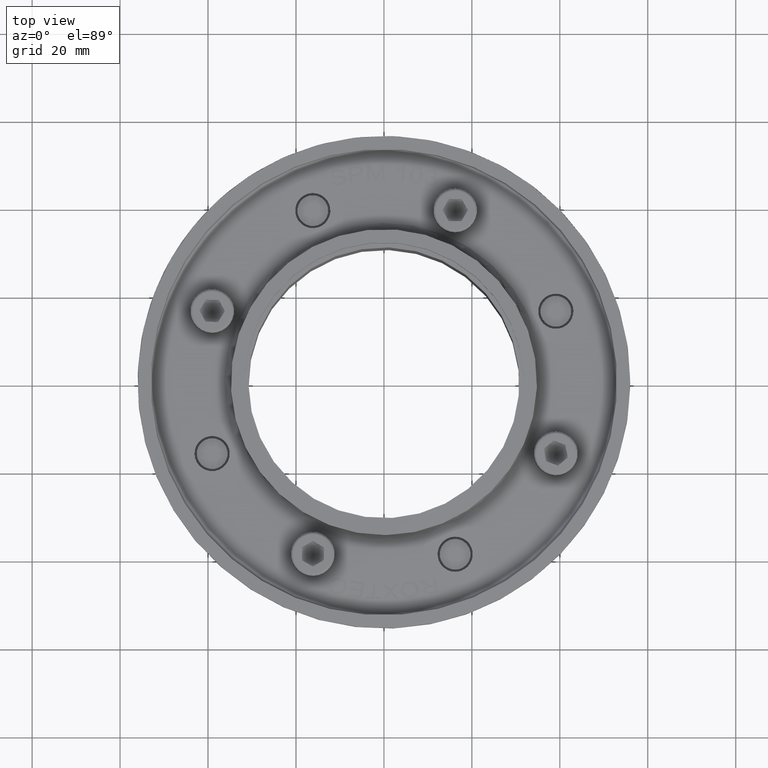
[diagram: clean part render]
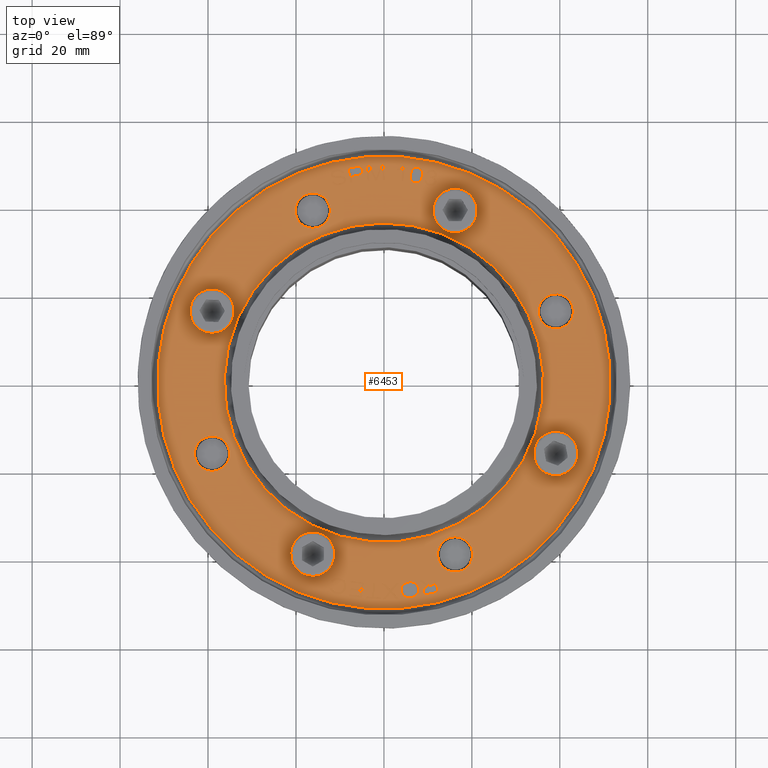
[diagram: same view with one face highlighted and labeled with its STEP entity id]
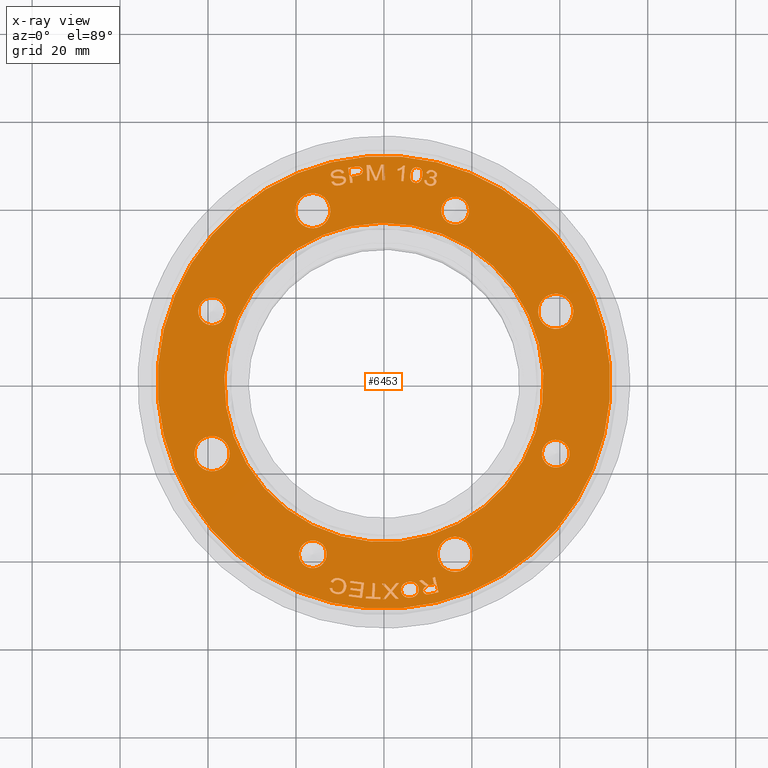
[diagram: x-ray of the same camera — body ghosted, the highlighted face saturated]
A machine part, top view. The second image highlights one B-rep face of the part: STEP entity #6453.
The next image is the same camera in x-ray: the body ghosted, the highlighted face saturated — about 0% of this face is hidden behind the body in this view.
In plain terms, the highlighted planar face has unit normal (-0, 0, 1).
Its self-contained STEP definition (entity closure, byte-faithful):
#2843=CARTESIAN_POINT('',(43.720680268646952,-1.999999999999993,23.246026071562472));
#2844=VERTEX_POINT('',#2843);
#2845=CARTESIAN_POINT('',(40.600365829603049,-1.999999999999993,21.631348333801945));
#2846=VERTEX_POINT('',#2845);
#2847=CARTESIAN_POINT('',(43.720680268646944,-1.999999999999993,23.246026071562468));
#2848=DIRECTION('',(-0.888133770201429,0.0,-0.459585036992932));
#2849=VECTOR('',#2848,3.513338354802347);
#2850=LINE('',#2847,#2849);
#2851=EDGE_CURVE('',#2844,#2846,#2850,.T.);
#2883=CARTESIAN_POINT('',(43.872707633477852,-1.999999999999993,22.952237923922802));
#2884=VERTEX_POINT('',#2883);
#2885=CARTESIAN_POINT('',(43.872707633477852,-1.999999999999993,22.952237923922802));
#2886=DIRECTION('',(-0.459585036992912,0.0,0.88813377020144));
#2887=VECTOR('',#2886,0.330792677293462);
#2888=LINE('',#2885,#2887);
#2889=EDGE_CURVE('',#2884,#2844,#2888,.T.);
#2918=CARTESIAN_POINT('',(43.651063685289238,-1.999999999999993,21.470862035169436));
#2919=VERTEX_POINT('',#2918);
#2920=CARTESIAN_POINT('',(43.651063685289238,-1.999999999999993,21.470862035169436));
#2921=CARTESIAN_POINT('',(43.601710622375464,-1.999999999999993,21.931921744056325));
#2922=CARTESIAN_POINT('',(43.733847980711751,-1.999999999999993,22.727193395372403));
#2923=CARTESIAN_POINT('',(43.872707633477852,-1.999999999999993,22.952237923922802));
#2924=QUASI_UNIFORM_CURVE('',2,(#2920,#2921,#2922,#2923),.UNSPECIFIED.,.F.,.U.);
#2925=EDGE_CURVE('',#2919,#2884,#2924,.T.);
#2951=CARTESIAN_POINT('',(43.281459241484498,-1.999999999999993,21.279601801995067));
#2952=VERTEX_POINT('',#2951);
#2953=CARTESIAN_POINT('',(43.281459241484505,-1.999999999999993,21.279601801995067));
#2954=DIRECTION('',(0.888133770201426,0.0,0.459585036992938));
#2955=VECTOR('',#2954,0.416158529498232);
#2956=LINE('',#2953,#2955);
#2957=EDGE_CURVE('',#2952,#2919,#2956,.T.);
#2986=CARTESIAN_POINT('',(43.267849062592276,-1.999999999999993,22.431985138818526));
#2987=VERTEX_POINT('',#2986);
#2988=CARTESIAN_POINT('',(43.267849062592276,-1.999999999999993,22.431985138818526));
#2989=CARTESIAN_POINT('',(43.223361703059872,-1.999999999999993,22.1987054984921));
#2990=CARTESIAN_POINT('',(43.23745605841296,-1.999999999999993,21.52716389475987));
#2991=CARTESIAN_POINT('',(43.281459241484498,-1.999999999999993,21.279601801995067));
#2992=QUASI_UNIFORM_CURVE('',2,(#2988,#2989,#2990,#2991),.UNSPECIFIED.,.F.,.U.);
#2993=EDGE_CURVE('',#2987,#2952,#2992,.T.);
#3019=CARTESIAN_POINT('',(40.836989066799546,-1.999999999999993,21.174081297556341));
#3020=VERTEX_POINT('',#3019);
#3021=CARTESIAN_POINT('',(40.836989066799553,-1.999999999999993,21.174081297556338));
#3022=DIRECTION('',(0.888133770201428,0.0,0.459585036992934));
#3023=VECTOR('',#3022,2.737042636315262);
#3024=LINE('',#3021,#3023);
#3025=EDGE_CURVE('',#3020,#2987,#3024,.T.);
#3050=CARTESIAN_POINT('',(40.600365829603057,-1.999999999999993,21.631348333801945));
#3051=DIRECTION('',(0.459585036992934,0.0,-0.888133770201428));
#3052=VECTOR('',#3051,0.514862796109978);
#3053=LINE('',#3050,#3052);
#3054=EDGE_CURVE('',#2846,#3020,#3053,.T.);
#3093=CARTESIAN_POINT('',(45.23693117355252,-1.999999999999993,8.014570186118721));
#3094=VERTEX_POINT('',#3093);
#3095=CARTESIAN_POINT('',(46.711315758164702,-1.999999999999993,6.460801574353274));
#3096=VERTEX_POINT('',#3095);
#3097=CARTESIAN_POINT('',(45.23693117355252,-1.999999999999993,8.014570186118721));
#3098=CARTESIAN_POINT('',(45.334887849326719,-1.999999999999993,7.454860950917253));
#3099=CARTESIAN_POINT('',(45.740621572725424,-1.999999999999993,6.745899610741173));
#3100=CARTESIAN_POINT('',(46.362614134926702,-1.999999999999993,6.410607000356148));
#3101=CARTESIAN_POINT('',(46.711315758164702,-1.999999999999993,6.460801574353274));
#3102=QUASI_UNIFORM_CURVE('',2,(#3097,#3098,#3099,#3100,#3101),.UNSPECIFIED.,.F.,.U.);
#3103=EDGE_CURVE('',#3094,#3096,#3102,.T.);
#3143=CARTESIAN_POINT('',(46.002437750122326,-1.999999999999993,9.722025769364349));
#3144=VERTEX_POINT('',#3143);
#3145=CARTESIAN_POINT('',(46.002437750122326,-1.999999999999993,9.722025769364349));
#3146=CARTESIAN_POINT('',(45.726524746853997,-1.999999999999993,9.673737267222133));
#3147=CARTESIAN_POINT('',(45.306616544033396,-1.999999999999993,9.210262549441666));
#3148=CARTESIAN_POINT('',(45.15920967962839,-1.999999999999993,8.458658734236328));
#3149=CARTESIAN_POINT('',(45.23693117355252,-1.999999999999993,8.014570186118721));
#3150=QUASI_UNIFORM_CURVE('',2,(#3145,#3146,#3147,#3148,#3149),.UNSPECIFIED.,.F.,.U.);
#3151=EDGE_CURVE('',#3144,#3094,#3150,.T.);
#3182=CARTESIAN_POINT('',(46.966566127455458,-1.999999999999993,9.164955634217629));
#3183=VERTEX_POINT('',#3182);
#3184=CARTESIAN_POINT('',(46.966566127455458,-1.999999999999993,9.164955634217629));
#3185=CARTESIAN_POINT('',(46.764290756343989,-1.999999999999993,9.500582213591189));
#3186=CARTESIAN_POINT('',(46.278350753390654,-1.999999999999993,9.770314271506555));
#3187=CARTESIAN_POINT('',(46.002437750122326,-1.999999999999993,9.722025769364349));
#3188=QUASI_UNIFORM_CURVE('',2,(#3184,#3185,#3186,#3187),.UNSPECIFIED.,.F.,.U.);
#3189=EDGE_CURVE('',#3183,#3144,#3188,.T.);
#3219=CARTESIAN_POINT('',(47.735664236926858,-1.999999999999993,7.509418202968146));
#3220=VERTEX_POINT('',#3219);
#3221=CARTESIAN_POINT('',(47.735664236926851,-1.999999999999993,7.509418202968146));
#3222=CARTESIAN_POINT('',(47.589822377159159,-1.999999999999993,7.64638770391767));
#3223=CARTESIAN_POINT('',(47.10485446860946,-1.999999999999993,8.931876117709328));
#3224=CARTESIAN_POINT('',(46.966566127455458,-1.999999999999993,9.164955634217629));
#3225=QUASI_UNIFORM_CURVE('',2,(#3221,#3222,#3223,#3224),.UNSPECIFIED.,.F.,.U.);
#3226=EDGE_CURVE('',#3220,#3183,#3225,.T.);
#3254=CARTESIAN_POINT('',(48.071163475146562,-1.999999999999993,7.402933074885008));
#3255=VERTEX_POINT('',#3254);
#3256=CARTESIAN_POINT('',(48.071163475146562,-1.999999999999993,7.402933074885008));
#3257=CARTESIAN_POINT('',(47.884593730079402,-1.999999999999993,7.370280849626942));
#3258=CARTESIAN_POINT('',(47.735664236926851,-1.999999999999993,7.509418202968146));
#3259=QUASI_UNIFORM_CURVE('',2,(#3256,#3257,#3258),.UNSPECIFIED.,.F.,.U.);
#3260=EDGE_CURVE('',#3255,#3220,#3259,.T.);
#3289=CARTESIAN_POINT('',(48.422808354865836,-1.999999999999993,8.442146685379122));
#3290=VERTEX_POINT('',#3289);
#3291=CARTESIAN_POINT('',(48.422808354865836,-1.999999999999993,8.442146685379122));
#3292=CARTESIAN_POINT('',(48.509727658721815,-1.999999999999993,7.945503279496133));
#3293=CARTESIAN_POINT('',(48.284010649096416,-1.999999999999993,7.440184205108995));
#3294=CARTESIAN_POINT('',(48.071163475146562,-1.999999999999993,7.402933074885008));
#3295=QUASI_UNIFORM_CURVE('',2,(#3291,#3292,#3293,#3294),.UNSPECIFIED.,.F.,.U.);
#3296=EDGE_CURVE('',#3290,#3255,#3295,.T.);
#3326=CARTESIAN_POINT('',(47.584938977323503,-1.999999999999993,9.330052063556904));
#3327=VERTEX_POINT('',#3326);
#3328=CARTESIAN_POINT('',(47.584938977323503,-1.999999999999993,9.330052063556904));
#3329=CARTESIAN_POINT('',(47.920765086302723,-1.999999999999993,9.345494489418647));
#3330=CARTESIAN_POINT('',(48.339568174982588,-1.999999999999993,8.917768148155965));
#3331=CARTESIAN_POINT('',(48.422808354865836,-1.999999999999993,8.442146685379122));
#3332=QUASI_UNIFORM_CURVE('',2,(#3328,#3329,#3330,#3331),.UNSPECIFIED.,.F.,.U.);
#3333=EDGE_CURVE('',#3327,#3290,#3332,.T.);
#3359=CARTESIAN_POINT('',(47.527121535552524,-1.999999999999993,9.861579217666561));
#3360=VERTEX_POINT('',#3359);
#3361=CARTESIAN_POINT('',(47.527121535552524,-1.999999999999993,9.861579217666561));
#3362=DIRECTION('',(0.108138205817021,0.0,-0.994135870212254));
#3363=VECTOR('',#3362,0.534662484310291);
#3364=LINE('',#3361,#3363);
#3365=EDGE_CURVE('',#3360,#3327,#3364,.T.);
#3396=CARTESIAN_POINT('',(48.828992031240446,-1.999999999999993,8.48886024536335));
#3397=VERTEX_POINT('',#3396);
#3398=CARTESIAN_POINT('',(48.828992031240446,-1.999999999999993,8.48886024536335));
#3399=CARTESIAN_POINT('',(48.748511194336771,-1.999999999999993,8.948715250810571));
#3400=CARTESIAN_POINT('',(48.378712600249202,-1.999999999999993,9.60709289529893));
#3401=CARTESIAN_POINT('',(47.831611420186505,-1.999999999999993,9.901327910333349));
#3402=CARTESIAN_POINT('',(47.527121535552517,-1.999999999999993,9.861579217666563));
#3403=QUASI_UNIFORM_CURVE('',2,(#3398,#3399,#3400,#3401,#3402),.UNSPECIFIED.,.F.,.U.);
#3404=EDGE_CURVE('',#3397,#3360,#3403,.T.);
#3437=CARTESIAN_POINT('',(48.132068550302421,-1.999999999999993,6.869238068383662));
#3438=VERTEX_POINT('',#3437);
#3439=CARTESIAN_POINT('',(48.132068550302414,-1.999999999999993,6.869238068383661));
#3440=CARTESIAN_POINT('',(48.394842839129396,-1.999999999999993,6.91522711804291));
#3441=CARTESIAN_POINT('',(48.784729398871818,-1.999999999999993,7.349073573373239));
#3442=CARTESIAN_POINT('',(48.901654729702059,-1.999999999999993,8.073676869016726));
#3443=CARTESIAN_POINT('',(48.828992031240446,-1.999999999999993,8.48886024536335));
#3444=QUASI_UNIFORM_CURVE('',2,(#3439,#3440,#3441,#3442,#3443),.UNSPECIFIED.,.F.,.U.);
#3445=EDGE_CURVE('',#3438,#3397,#3444,.T.);
#3476=CARTESIAN_POINT('',(47.280606246405384,-1.999999999999993,7.324155940938972));
#3477=VERTEX_POINT('',#3476);
#3478=CARTESIAN_POINT('',(47.280606246405398,-1.999999999999993,7.324155940938972));
#3479=CARTESIAN_POINT('',(47.460873383548972,-1.999999999999993,7.05238337178578));
#3480=CARTESIAN_POINT('',(47.895571690358132,-1.999999999999993,6.827847923690342));
#3481=CARTESIAN_POINT('',(48.132068550302414,-1.999999999999993,6.869238068383661));
#3482=QUASI_UNIFORM_CURVE('',2,(#3478,#3479,#3480,#3481),.UNSPECIFIED.,.F.,.U.);
#3483=EDGE_CURVE('',#3477,#3438,#3482,.T.);
#3513=CARTESIAN_POINT('',(46.626211882316319,-1.999999999999993,8.788526141801185));
#3514=VERTEX_POINT('',#3513);
#3515=CARTESIAN_POINT('',(46.626211882316312,-1.999999999999993,8.788526141801185));
#3516=CARTESIAN_POINT('',(46.710367584255295,-1.999999999999993,8.632636040268622));
#3517=CARTESIAN_POINT('',(47.138113800559324,-1.999999999999993,7.534833842851345));
#3518=CARTESIAN_POINT('',(47.280606246405398,-1.999999999999993,7.324155940938972));
#3519=QUASI_UNIFORM_CURVE('',2,(#3515,#3516,#3517,#3518),.UNSPECIFIED.,.F.,.U.);
#3520=EDGE_CURVE('',#3514,#3477,#3519,.T.);
#3550=CARTESIAN_POINT('',(46.055459596613375,-1.999999999999993,9.186951091373219));
#3551=VERTEX_POINT('',#3550);
#3552=CARTESIAN_POINT('',(46.055459596613375,-1.999999999999993,9.186951091373219));
#3553=CARTESIAN_POINT('',(46.2183796556861,-1.999999999999993,9.215464302161953));
#3554=CARTESIAN_POINT('',(46.499682584113877,-1.999999999999993,9.031788339457263));
#3555=CARTESIAN_POINT('',(46.626211882316312,-1.999999999999993,8.788526141801185));
#3556=QUASI_UNIFORM_CURVE('',2,(#3552,#3553,#3554,#3555),.UNSPECIFIED.,.F.,.U.);
#3557=EDGE_CURVE('',#3551,#3514,#3556,.T.);
#3589=CARTESIAN_POINT('',(45.648830226200268,-1.999999999999993,8.059575784207871));
#3590=VERTEX_POINT('',#3589);
#3591=CARTESIAN_POINT('',(45.648830226200268,-1.999999999999993,8.059575784207871));
#3592=CARTESIAN_POINT('',(45.594103257105765,-1.999999999999993,8.372277187911976));
#3593=CARTESIAN_POINT('',(45.665440017133854,-1.999999999999993,8.877659932876041));
#3594=CARTESIAN_POINT('',(45.895167280428915,-1.999999999999993,9.158897771081076));
#3595=CARTESIAN_POINT('',(46.055459596613375,-1.999999999999993,9.186951091373219));
#3596=QUASI_UNIFORM_CURVE('',2,(#3591,#3592,#3593,#3594,#3595),.UNSPECIFIED.,.F.,.U.);
#3597=EDGE_CURVE('',#3590,#3551,#3596,.T.);
#3630=CARTESIAN_POINT('',(46.657965621268353,-1.999999999999993,6.982277647406452));
#3631=VERTEX_POINT('',#3630);
#3632=CARTESIAN_POINT('',(46.657965621268353,-1.999999999999993,6.982277647406452));
#3633=CARTESIAN_POINT('',(46.391380608377339,-1.999999999999993,6.973536888679579));
#3634=CARTESIAN_POINT('',(46.013376173802911,-1.999999999999993,7.183620460712454));
#3635=CARTESIAN_POINT('',(45.709995662247067,-1.999999999999993,7.71008598006798));
#3636=CARTESIAN_POINT('',(45.648830226200268,-1.999999999999993,8.059575784207871));
#3637=QUASI_UNIFORM_CURVE('',2,(#3632,#3633,#3634,#3635,#3636),.UNSPECIFIED.,.F.,.U.);
#3638=EDGE_CURVE('',#3631,#3590,#3637,.T.);
#3665=CARTESIAN_POINT('',(46.711315758164716,-1.999999999999993,6.460801574353274));
#3666=DIRECTION('',(-0.101774783566981,0.0,0.99480746550772));
#3667=VECTOR('',#3666,0.524197989192846);
#3668=LINE('',#3665,#3667);
#3669=EDGE_CURVE('',#3096,#3631,#3668,.T.);
#3911=CARTESIAN_POINT('',(44.716691513595322,-1.999999999999993,10.831175424514754));
#3912=VERTEX_POINT('',#3911);
#3913=CARTESIAN_POINT('',(44.858388111113989,-1.999999999999993,10.294694564853009));
#3914=VERTEX_POINT('',#3913);
#3915=CARTESIAN_POINT('',(44.716691513595329,-1.999999999999993,10.831175424514756));
#3916=DIRECTION('',(0.255365300975886,0.0,-0.96684464266887));
#3917=VECTOR('',#3916,0.55487803933096);
#3918=LINE('',#3915,#3917);
#3919=EDGE_CURVE('',#3912,#3914,#3918,.T.);
#3951=CARTESIAN_POINT('',(46.091423716478573,-1.999999999999993,11.194272955656333));
#3952=VERTEX_POINT('',#3951);
#3953=CARTESIAN_POINT('',(46.091423716478594,-1.999999999999993,11.194272955656333));
#3954=DIRECTION('',(-0.96684464266887,0.0,-0.255365300975888));
#3955=VECTOR('',#3954,1.421874975785623);
#3956=LINE('',#3953,#3955);
#3957=EDGE_CURVE('',#3952,#3912,#3956,.T.);
#3982=CARTESIAN_POINT('',(45.816886558786166,-1.999999999999993,12.233704621250991));
#3983=VERTEX_POINT('',#3982);
#3984=CARTESIAN_POINT('',(45.816886558786166,-1.999999999999993,12.233704621250993));
#3985=DIRECTION('',(0.255365300975895,0.0,-0.966844642668868));
#3986=VECTOR('',#3985,1.075076201203764);
#3987=LINE('',#3984,#3986);
#3988=EDGE_CURVE('',#3983,#3952,#3987,.T.);
#4017=CARTESIAN_POINT('',(46.444754669683022,-1.999999999999993,14.024686201783307));
#4018=VERTEX_POINT('',#4017);
#4019=CARTESIAN_POINT('',(46.444754669683022,-1.999999999999993,14.024686201783307));
#4020=CARTESIAN_POINT('',(46.014022441012287,-1.999999999999993,13.910920183583224));
#4021=CARTESIAN_POINT('',(45.589354522386003,-1.999999999999993,13.095169078592459));
#4022=CARTESIAN_POINT('',(45.816886558786159,-1.999999999999993,12.233704621250991));
#4023=QUASI_UNIFORM_CURVE('',2,(#4019,#4020,#4021,#4022),.UNSPECIFIED.,.F.,.U.);
#4024=EDGE_CURVE('',#4018,#3983,#4023,.T.);
#4056=CARTESIAN_POINT('',(47.642027859023074,-1.999999999999993,13.325540504349762));
#4057=VERTEX_POINT('',#4056);
#4058=CARTESIAN_POINT('',(47.642027859023074,-1.999999999999993,13.325540504349762));
#4059=CARTESIAN_POINT('',(47.521736998125235,-1.999999999999993,13.613832014736618));
#4060=CARTESIAN_POINT('',(47.182652175144526,-1.999999999999993,13.957460866612648));
#4061=CARTESIAN_POINT('',(46.697519690100577,-1.999999999999993,14.091447098691132));
#4062=CARTESIAN_POINT('',(46.444754669683022,-1.999999999999993,14.024686201783307));
#4063=QUASI_UNIFORM_CURVE('',2,(#4058,#4059,#4060,#4061,#4062),.UNSPECIFIED.,.F.,.U.);
#4064=EDGE_CURVE('',#4057,#4018,#4063,.T.);
#4093=CARTESIAN_POINT('',(47.83837275317002,-1.999999999999993,12.717959400064105));
#4094=VERTEX_POINT('',#4093);
#4095=CARTESIAN_POINT('',(47.83837275317002,-1.999999999999993,12.717959400064105));
#4096=CARTESIAN_POINT('',(47.731419071389105,-1.999999999999993,13.122899279712641));
#4097=CARTESIAN_POINT('',(47.642027859023074,-1.999999999999993,13.325540504349762));
#4098=QUASI_UNIFORM_CURVE('',2,(#4095,#4096,#4097),.UNSPECIFIED.,.F.,.U.);
#4099=EDGE_CURVE('',#4094,#4057,#4098,.T.);
#4124=CARTESIAN_POINT('',(48.242344302826595,-1.999999999999993,11.188473103047659));
#4125=VERTEX_POINT('',#4124);
#4126=CARTESIAN_POINT('',(48.242344302826609,-1.999999999999993,11.188473103047663));
#4127=DIRECTION('',(-0.255365300975892,0.0,0.966844642668868));
#4128=VECTOR('',#4127,1.581935948669545);
#4129=LINE('',#4126,#4128);
#4130=EDGE_CURVE('',#4125,#4094,#4129,.T.);
#4155=CARTESIAN_POINT('',(44.858388111113996,-1.999999999999993,10.29469456485301));
#4156=DIRECTION('',(0.966844642668869,0.0,0.255365300975889));
#4157=VECTOR('',#4156,3.49999994039535);
#4158=LINE('',#4155,#4157);
#4159=EDGE_CURVE('',#3914,#4125,#4158,.T.);
#4201=CARTESIAN_POINT('',(43.661283902737217,-1.999999999999993,14.555166597799857));
#4202=VERTEX_POINT('',#4201);
#4203=CARTESIAN_POINT('',(43.847021076387158,-1.999999999999993,14.052158933974425));
#4204=VERTEX_POINT('',#4203);
#4205=CARTESIAN_POINT('',(43.66128390273721,-1.999999999999993,14.555166597799854));
#4206=DIRECTION('',(0.346392574241208,0.0,-0.938089646308149));
#4207=VECTOR('',#4206,0.536204259161177);
#4208=LINE('',#4205,#4207);
#4209=EDGE_CURVE('',#4202,#4204,#4208,.T.);
#4241=CARTESIAN_POINT('',(46.45660509921985,-1.999999999999993,15.587347806590818));
#4242=VERTEX_POINT('',#4241);
#4243=CARTESIAN_POINT('',(46.456605099219864,-1.999999999999993,15.587347806590824));
#4244=DIRECTION('',(-0.93808964630815,0.0,-0.346392574241207));
#4245=VECTOR('',#4244,2.979801778522576);
#4246=LINE('',#4243,#4245);
#4247=EDGE_CURVE('',#4242,#4202,#4246,.T.);
#4272=CARTESIAN_POINT('',(43.241758147328895,-1.999999999999993,15.691313261365758));
#4273=VERTEX_POINT('',#4272);
#4274=CARTESIAN_POINT('',(43.241758147328902,-1.999999999999993,15.691313261365758));
#4275=DIRECTION('',(0.999477499112984,0.0,-0.032322264259417));
#4276=VECTOR('',#4275,3.216527590410042);
#4277=LINE('',#4274,#4276);
#4278=EDGE_CURVE('',#4273,#4242,#4277,.T.);
#4303=CARTESIAN_POINT('',(43.068033825706067,-1.999999999999993,16.161788091212433));
#4304=VERTEX_POINT('',#4303);
#4305=CARTESIAN_POINT('',(43.068033825706088,-1.999999999999993,16.161788091212436));
#4306=DIRECTION('',(0.346392574241205,0.0,-0.938089646308151));
#4307=VECTOR('',#4306,0.501524381702991);
#4308=LINE('',#4305,#4307);
#4309=EDGE_CURVE('',#4304,#4273,#4308,.T.);
#4334=CARTESIAN_POINT('',(45.392585016495381,-1.999999999999993,18.322568821061605));
#4335=VERTEX_POINT('',#4334);
#4336=CARTESIAN_POINT('',(45.392585016495381,-1.999999999999993,18.322568821061608));
#4337=DIRECTION('',(-0.732436917879776,0.0,-0.680834900197379));
#4338=VECTOR('',#4337,3.173722042190768);
#4339=LINE('',#4336,#4338);
#4340=EDGE_CURVE('',#4335,#4304,#4339,.T.);
#4365=CARTESIAN_POINT('',(42.64481180813555,-1.999999999999993,17.307944857541038));
#4366=VERTEX_POINT('',#4365);
#4367=CARTESIAN_POINT('',(42.644811808135564,-1.999999999999993,17.307944857541038));
#4368=DIRECTION('',(0.93808964630815,0.0,0.346392574241208));
#4369=VECTOR('',#4368,2.929115803775984);
#4370=LINE('',#4367,#4369);
#4371=EDGE_CURVE('',#4366,#4335,#4370,.T.);
#4396=CARTESIAN_POINT('',(42.45907463448561,-1.999999999999993,17.81095252136647));
#4397=VERTEX_POINT('',#4396);
#4398=CARTESIAN_POINT('',(42.45907463448561,-1.999999999999993,17.81095252136647));
#4399=DIRECTION('',(0.346392574241208,0.0,-0.938089646308149));
#4400=VECTOR('',#4399,0.536204259161177);
#4401=LINE('',#4398,#4400);
#4402=EDGE_CURVE('',#4397,#4366,#4401,.T.);
#4427=CARTESIAN_POINT('',(45.74238834064964,-1.999999999999993,19.02332651056409));
#4428=VERTEX_POINT('',#4427);
#4429=CARTESIAN_POINT('',(45.742388340649647,-1.999999999999993,19.02332651056409));
#4430=DIRECTION('',(-0.93808964630815,0.0,-0.346392574241207));
#4431=VECTOR('',#4430,3.499999940395361);
#4432=LINE('',#4429,#4431);
#4433=EDGE_CURVE('',#4428,#4397,#4432,.T.);
#4458=CARTESIAN_POINT('',(46.000202626462247,-1.999999999999993,18.3251218428661));
#4459=VERTEX_POINT('',#4458);
#4460=CARTESIAN_POINT('',(46.00020262646224,-1.999999999999993,18.325121842866103));
#4461=DIRECTION('',(-0.346392574241205,0.0,0.938089646308151));
#4462=VECTOR('',#4461,0.744283523910288);
#4463=LINE('',#4460,#4462);
#4464=EDGE_CURVE('',#4459,#4428,#4463,.T.);
#4489=CARTESIAN_POINT('',(44.064693445203815,-1.999999999999993,16.535495293272017));
#4490=VERTEX_POINT('',#4489);
#4491=CARTESIAN_POINT('',(44.064693445203829,-1.999999999999993,16.535495293272021));
#4492=DIRECTION('',(0.734235471573402,0.0,0.678894890453143));
#4493=VECTOR('',#4492,2.636087816774638);
#4494=LINE('',#4491,#4493);
#4495=EDGE_CURVE('',#4490,#4459,#4494,.T.);
#4522=CARTESIAN_POINT('',(43.616784555568266,-1.999999999999993,16.131229371740559));
#4523=VERTEX_POINT('',#4522);
#4524=CARTESIAN_POINT('',(43.616784555568266,-1.999999999999993,16.131229371740559));
#4525=CARTESIAN_POINT('',(43.770438175551888,-1.999999999999993,16.26190369307691));
#4526=CARTESIAN_POINT('',(44.064693445203815,-1.999999999999993,16.535495293272017));
#4527=QUASI_UNIFORM_CURVE('',2,(#4524,#4525,#4526),.UNSPECIFIED.,.F.,.U.);
#4528=EDGE_CURVE('',#4523,#4490,#4527,.T.);
#4555=CARTESIAN_POINT('',(44.172503520640554,-1.999999999999993,16.120306134115467));
#4556=VERTEX_POINT('',#4555);
#4557=CARTESIAN_POINT('',(44.172503520640554,-1.999999999999993,16.120306134115467));
#4558=CARTESIAN_POINT('',(43.799123772744508,-1.999999999999993,16.130308949759392));
#4559=CARTESIAN_POINT('',(43.616784555568266,-1.999999999999993,16.131229371740559));
#4560=QUASI_UNIFORM_CURVE('',2,(#4557,#4558,#4559),.UNSPECIFIED.,.F.,.U.);
#4561=EDGE_CURVE('',#4556,#4523,#4560,.T.);
#4586=CARTESIAN_POINT('',(46.841102268359975,-1.999999999999993,16.047823464352941));
#4587=VERTEX_POINT('',#4586);
#4588=CARTESIAN_POINT('',(46.841102268359982,-1.999999999999993,16.047823464352941));
#4589=DIRECTION('',(-0.999631335265546,0.0,0.027151308536079));
#4590=VECTOR('',#4589,2.669582928800971);
#4591=LINE('',#4588,#4590);
#4592=EDGE_CURVE('',#4587,#4556,#4591,.T.);
#4617=CARTESIAN_POINT('',(47.130334782551188,-1.999999999999993,15.264532923172045));
#4618=VERTEX_POINT('',#4617);
#4619=CARTESIAN_POINT('',(47.130334782551195,-1.999999999999993,15.26453292317205));
#4620=DIRECTION('',(-0.346392574241214,0.0,0.938089646308147));
#4621=VECTOR('',#4620,0.834984741877853);
#4622=LINE('',#4619,#4621);
#4623=EDGE_CURVE('',#4618,#4587,#4622,.T.);
#4648=CARTESIAN_POINT('',(43.847021076387165,-1.999999999999993,14.052158933974429));
#4649=DIRECTION('',(0.93808964630815,0.0,0.346392574241207));
#4650=VECTOR('',#4649,3.499999940395354);
#4651=LINE('',#4648,#4650);
#4652=EDGE_CURVE('',#4204,#4618,#4651,.T.);
#4872=CARTESIAN_POINT('',(40.018810502879646,-1.999999999999993,23.307977609776653));
#4873=VERTEX_POINT('',#4872);
#4874=CARTESIAN_POINT('',(41.451423887301942,-1.999999999999993,23.695441929179481));
#4875=VERTEX_POINT('',#4874);
#4876=CARTESIAN_POINT('',(40.018810502879646,-1.999999999999993,23.30797760977665));
#4877=CARTESIAN_POINT('',(40.611380393884446,-1.999999999999993,23.182293766571288));
#4878=CARTESIAN_POINT('',(41.451423887301942,-1.999999999999993,23.695441929179481));
#4879=QUASI_UNIFORM_CURVE('',2,(#4876,#4877,#4878),.UNSPECIFIED.,.F.,.U.);
#4880=EDGE_CURVE('',#4873,#4875,#4879,.T.);
#4914=CARTESIAN_POINT('',(39.215017100000281,-1.999999999999993,23.932965482941793));
#4915=VERTEX_POINT('',#4914);
#4916=CARTESIAN_POINT('',(39.215017100000281,-1.999999999999993,23.932965482941796));
#4917=CARTESIAN_POINT('',(39.532084257384206,-1.999999999999993,23.413914218716346));
#4918=CARTESIAN_POINT('',(40.018810502879646,-1.999999999999993,23.30797760977665));
#4919=QUASI_UNIFORM_CURVE('',2,(#4916,#4917,#4918),.UNSPECIFIED.,.F.,.U.);
#4920=EDGE_CURVE('',#4915,#4873,#4919,.T.);
#4951=CARTESIAN_POINT('',(40.024621679074272,-1.999999999999993,26.031172618194006));
#4952=VERTEX_POINT('',#4951);
#4953=CARTESIAN_POINT('',(40.024621679074272,-1.999999999999993,26.031172618194006));
#4954=CARTESIAN_POINT('',(39.498740792951111,-1.999999999999993,25.709933524528715));
#4955=CARTESIAN_POINT('',(39.010736831993839,-1.999999999999993,25.055464591113207));
#4956=CARTESIAN_POINT('',(38.974435441108078,-1.999999999999993,24.326807012376022));
#4957=CARTESIAN_POINT('',(39.215017100000281,-1.999999999999993,23.932965482941796));
#4958=QUASI_UNIFORM_CURVE('',2,(#4953,#4954,#4955,#4956,#4957),.UNSPECIFIED.,.F.,.U.);
#4959=EDGE_CURVE('',#4952,#4915,#4958,.T.);
#4994=CARTESIAN_POINT('',(42.263305007008526,-1.999999999999993,25.795039709858813));
#4995=VERTEX_POINT('',#4994);
#4996=CARTESIAN_POINT('',(42.263305007008512,-1.999999999999993,25.795039709858813));
#4997=CARTESIAN_POINT('',(42.086693037763958,-1.999999999999993,26.084160370194919));
#4998=CARTESIAN_POINT('',(41.627573807415303,-1.999999999999993,26.400774769709955));
#4999=CARTESIAN_POINT('',(41.090887273241265,-1.999999999999993,26.460562539808755));
#5000=CARTESIAN_POINT('',(40.468547102424985,-1.999999999999993,26.302348476482894));
#5001=CARTESIAN_POINT('',(40.024621679074272,-1.999999999999993,26.031172618194006));
#5002=QUASI_UNIFORM_CURVE('',2,(#4996,#4997,#4998,#4999,#5000,#5001),.UNSPECIFIED.,.F.,.U.);
#5003=EDGE_CURVE('',#4995,#4952,#5002,.T.);
#5037=CARTESIAN_POINT('',(41.451423887301942,-1.999999999999993,23.695441929179481));
#5038=CARTESIAN_POINT('',(41.981857854690233,-1.999999999999993,24.01946231369902));
#5039=CARTESIAN_POINT('',(42.46847117022039,-1.999999999999993,24.676207787747106));
#5040=CARTESIAN_POINT('',(42.502496020473579,-1.999999999999993,25.403474721057158));
#5041=CARTESIAN_POINT('',(42.263305007008512,-1.999999999999993,25.795039709858813));
#5042=QUASI_UNIFORM_CURVE('',2,(#5037,#5038,#5039,#5040,#5041),.UNSPECIFIED.,.F.,.U.);
#5043=EDGE_CURVE('',#4875,#4995,#5042,.T.);
#5087=CARTESIAN_POINT('',(37.441302504730857,-1.999999999999993,26.622462133894224));
#5088=VERTEX_POINT('',#5087);
#5089=CARTESIAN_POINT('',(39.019235821178206,-1.999999999999993,26.109127289461057));
#5090=VERTEX_POINT('',#5089);
#5091=CARTESIAN_POINT('',(37.441302504730857,-1.999999999999993,26.622462133894224));
#5092=CARTESIAN_POINT('',(37.761798194876022,-1.999999999999993,26.172774697591471));
#5093=CARTESIAN_POINT('',(38.633544238248689,-1.999999999999993,25.89648365712263));
#5094=CARTESIAN_POINT('',(39.019235821178206,-1.999999999999993,26.109127289461057));
#5095=QUASI_UNIFORM_CURVE('',2,(#5091,#5092,#5093,#5094),.UNSPECIFIED.,.F.,.U.);
#5096=EDGE_CURVE('',#5088,#5090,#5095,.T.);
#5133=CARTESIAN_POINT('',(37.511394935200386,-1.999999999999993,28.408633989932746));
#5134=VERTEX_POINT('',#5133);
#5135=CARTESIAN_POINT('',(37.511394935200386,-1.999999999999993,28.408633989932746));
#5136=CARTESIAN_POINT('',(37.139914009558979,-1.999999999999993,28.143876680682389));
#5137=CARTESIAN_POINT('',(37.085196182347353,-1.999999999999993,27.122114840897279));
#5138=CARTESIAN_POINT('',(37.441302504730857,-1.999999999999993,26.622462133894224));
#5139=QUASI_UNIFORM_CURVE('',2,(#5135,#5136,#5137,#5138),.UNSPECIFIED.,.F.,.U.);
#5140=EDGE_CURVE('',#5134,#5088,#5139,.T.);
#5170=CARTESIAN_POINT('',(38.668277905386212,-1.999999999999993,28.270044625893505));
#5171=VERTEX_POINT('',#5170);
#5172=CARTESIAN_POINT('',(38.668277905386219,-1.999999999999993,28.270044625893505));
#5173=CARTESIAN_POINT('',(38.392862652243721,-1.999999999999993,28.532377270572091));
#5174=CARTESIAN_POINT('',(37.787290125589038,-1.999999999999993,28.60526661142277));
#5175=CARTESIAN_POINT('',(37.511394935200386,-1.999999999999993,28.408633989932746));
#5176=QUASI_UNIFORM_CURVE('',2,(#5172,#5173,#5174,#5175),.UNSPECIFIED.,.F.,.U.);
#5177=EDGE_CURVE('',#5171,#5134,#5176,.T.);
#5207=CARTESIAN_POINT('',(38.910158549323555,-1.999999999999993,29.153300796213838));
#5208=VERTEX_POINT('',#5207);
#5209=CARTESIAN_POINT('',(38.910158549323555,-1.999999999999993,29.153300796213841));
#5210=CARTESIAN_POINT('',(38.725504288039829,-1.999999999999993,29.02169628576776));
#5211=CARTESIAN_POINT('',(38.590131288732756,-1.999999999999993,28.56814398056331));
#5212=CARTESIAN_POINT('',(38.668277905386219,-1.999999999999993,28.270044625893505));
#5213=QUASI_UNIFORM_CURVE('',2,(#5209,#5210,#5211,#5212),.UNSPECIFIED.,.F.,.U.);
#5214=EDGE_CURVE('',#5208,#5171,#5213,.T.);
#5246=CARTESIAN_POINT('',(40.362536527583742,-1.999999999999993,28.678241020918129));
#5247=VERTEX_POINT('',#5246);
#5248=CARTESIAN_POINT('',(40.362536527583742,-1.999999999999993,28.678241020918129));
#5249=CARTESIAN_POINT('',(40.162807329377316,-1.999999999999993,28.958481017454627));
#5250=CARTESIAN_POINT('',(39.626967672849048,-1.999999999999993,29.287449955543234));
#5251=CARTESIAN_POINT('',(39.103502422903006,-1.999999999999993,29.291098460092684));
#5252=CARTESIAN_POINT('',(38.910158549323555,-1.999999999999993,29.153300796213841));
#5253=QUASI_UNIFORM_CURVE('',2,(#5248,#5249,#5250,#5251,#5252),.UNSPECIFIED.,.F.,.U.);
#5254=EDGE_CURVE('',#5247,#5208,#5253,.T.);
#5285=CARTESIAN_POINT('',(40.356259875872254,-1.999999999999993,27.124276325166655));
#5286=VERTEX_POINT('',#5285);
#5287=CARTESIAN_POINT('',(40.356259875872254,-1.999999999999993,27.124276325166655));
#5288=CARTESIAN_POINT('',(40.653999081311703,-1.999999999999993,27.45113314678072));
#5289=CARTESIAN_POINT('',(40.650518162206914,-1.999999999999993,28.274174049167833));
#5290=CARTESIAN_POINT('',(40.362536527583742,-1.999999999999993,28.678241020918129));
#5291=QUASI_UNIFORM_CURVE('',2,(#5287,#5288,#5289,#5290),.UNSPECIFIED.,.F.,.U.);
#5292=EDGE_CURVE('',#5286,#5247,#5291,.T.);
#5318=CARTESIAN_POINT('',(39.994440533597889,-1.999999999999993,27.498649756046945));
#5319=VERTEX_POINT('',#5318);
#5320=CARTESIAN_POINT('',(39.994440533597896,-1.999999999999993,27.498649756046952));
#5321=DIRECTION('',(0.694947651446452,0.0,-0.719060332481956));
#5322=VECTOR('',#5321,0.520642585842662);
#5323=LINE('',#5320,#5322);
#5324=EDGE_CURVE('',#5319,#5286,#5323,.T.);
#5353=CARTESIAN_POINT('',(40.06803788003451,-1.999999999999993,28.484728973006796));
#5354=VERTEX_POINT('',#5353);
#5355=CARTESIAN_POINT('',(40.06803788003451,-1.999999999999993,28.484728973006792));
#5356=CARTESIAN_POINT('',(40.242994464509891,-1.999999999999993,28.239247425653112));
#5357=CARTESIAN_POINT('',(40.21889415551496,-1.999999999999993,27.730688938297842));
#5358=CARTESIAN_POINT('',(39.994440533597889,-1.999999999999993,27.498649756046945));
#5359=QUASI_UNIFORM_CURVE('',2,(#5355,#5356,#5357,#5358),.UNSPECIFIED.,.F.,.U.);
#5360=EDGE_CURVE('',#5354,#5319,#5359,.T.);
#5390=CARTESIAN_POINT('',(39.223236853466801,-1.999999999999993,28.727809852651006));
#5391=VERTEX_POINT('',#5390);
#5392=CARTESIAN_POINT('',(39.223236853466801,-1.999999999999993,28.727809852651003));
#5393=CARTESIAN_POINT('',(39.416580727046252,-1.999999999999993,28.865607516529835));
#5394=CARTESIAN_POINT('',(39.891533007200941,-1.999999999999993,28.73238292343439));
#5395=CARTESIAN_POINT('',(40.06803788003451,-1.999999999999993,28.484728973006792));
#5396=QUASI_UNIFORM_CURVE('',2,(#5392,#5393,#5394,#5395),.UNSPECIFIED.,.F.,.U.);
#5397=EDGE_CURVE('',#5391,#5354,#5396,.T.);
#5427=CARTESIAN_POINT('',(39.246029431613849,-1.999999999999993,27.68922091240329));
#5428=VERTEX_POINT('',#5427);
#5429=CARTESIAN_POINT('',(39.246029431613856,-1.999999999999993,27.68922091240329));
#5430=CARTESIAN_POINT('',(39.054041675198391,-1.999999999999993,27.958598893570155));
#5431=CARTESIAN_POINT('',(38.98210011226098,-1.999999999999993,28.555949844891998));
#5432=CARTESIAN_POINT('',(39.223236853466801,-1.999999999999993,28.727809852651003));
#5433=QUASI_UNIFORM_CURVE('',2,(#5429,#5430,#5431,#5432),.UNSPECIFIED.,.F.,.U.);
#5434=EDGE_CURVE('',#5428,#5391,#5433,.T.);
#5462=CARTESIAN_POINT('',(39.298371176865565,-1.999999999999993,27.624972993827946));
#5463=VERTEX_POINT('',#5462);
#5464=CARTESIAN_POINT('',(39.298371176865565,-1.999999999999993,27.624972993827946));
#5465=CARTESIAN_POINT('',(39.263060603553932,-1.999999999999993,27.665324478590101));
#5466=CARTESIAN_POINT('',(39.246029431613856,-1.999999999999993,27.68922091240329));
#5467=QUASI_UNIFORM_CURVE('',2,(#5464,#5465,#5466),.UNSPECIFIED.,.F.,.U.);
#5468=EDGE_CURVE('',#5463,#5428,#5467,.T.);
#5493=CARTESIAN_POINT('',(39.02457639896393,-1.999999999999993,27.361043870770825));
#5494=VERTEX_POINT('',#5493);
#5495=CARTESIAN_POINT('',(39.02457639896393,-1.999999999999993,27.361043870770828));
#5496=DIRECTION('',(0.719958950372546,0.0,0.694016649496582));
#5497=VECTOR('',#5496,0.380292206604212);
#5498=LINE('',#5495,#5497);
#5499=EDGE_CURVE('',#5494,#5463,#5498,.T.);
#5526=CARTESIAN_POINT('',(38.853112437580876,-1.999999999999993,27.684359879272211));
#5527=VERTEX_POINT('',#5526);
#5528=CARTESIAN_POINT('',(38.853112437580876,-1.999999999999993,27.684359879272211));
#5529=CARTESIAN_POINT('',(38.938268297281283,-1.999999999999993,27.564877710206261));
#5530=CARTESIAN_POINT('',(39.02457639896393,-1.999999999999993,27.361043870770825));
#5531=QUASI_UNIFORM_CURVE('',2,(#5528,#5529,#5530),.UNSPECIFIED.,.F.,.U.);
#5532=EDGE_CURVE('',#5527,#5494,#5531,.T.);
#5561=CARTESIAN_POINT('',(37.822276839407387,-1.999999999999993,27.958646494703277));
#5562=VERTEX_POINT('',#5561);
#5563=CARTESIAN_POINT('',(37.822276839407394,-1.999999999999993,27.958646494703277));
#5564=CARTESIAN_POINT('',(38.063413580613208,-1.999999999999993,28.130506502462275));
#5565=CARTESIAN_POINT('',(38.645641797583522,-1.999999999999993,27.975461891178341));
#5566=CARTESIAN_POINT('',(38.853112437580876,-1.999999999999993,27.684359879272211));
#5567=QUASI_UNIFORM_CURVE('',2,(#5563,#5564,#5565,#5566),.UNSPECIFIED.,.F.,.U.);
#5568=EDGE_CURVE('',#5562,#5527,#5567,.T.);
#5598=CARTESIAN_POINT('',(37.728683825204868,-1.999999999999993,26.830556888607305));
#5599=VERTEX_POINT('',#5598);
#5600=CARTESIAN_POINT('',(37.728683825204868,-1.999999999999993,26.830556888607305));
#5601=CARTESIAN_POINT('',(37.516568320132961,-1.999999999999993,27.128176109735218));
#5602=CARTESIAN_POINT('',(37.57027808283194,-1.999999999999993,27.779045045153332));
#5603=CARTESIAN_POINT('',(37.822276839407394,-1.999999999999993,27.958646494703277));
#5604=QUASI_UNIFORM_CURVE('',2,(#5600,#5601,#5602,#5603),.UNSPECIFIED.,.F.,.U.);
#5605=EDGE_CURVE('',#5599,#5562,#5604,.T.);
#5635=CARTESIAN_POINT('',(38.766036632600134,-1.999999999999993,26.560915138250813));
#5636=VERTEX_POINT('',#5635);
#5637=CARTESIAN_POINT('',(38.766036632600134,-1.999999999999993,26.560915138250813));
#5638=CARTESIAN_POINT('',(38.41732389565199,-1.999999999999993,26.420488934618461));
#5639=CARTESIAN_POINT('',(37.906736986396638,-1.999999999999993,26.580730535105779));
#5640=CARTESIAN_POINT('',(37.728683825204868,-1.999999999999993,26.830556888607305));
#5641=QUASI_UNIFORM_CURVE('',2,(#5637,#5638,#5639,#5640),.UNSPECIFIED.,.F.,.U.);
#5642=EDGE_CURVE('',#5636,#5599,#5641,.T.);
#5668=CARTESIAN_POINT('',(39.019235821178221,-1.999999999999993,26.109127289461064));
#5669=DIRECTION('',(-0.488894373243307,0.0,0.87234298977583));
#5670=VECTOR('',#5669,0.517901621363237);
#5671=LINE('',#5668,#5670);
#5672=EDGE_CURVE('',#5090,#5636,#5671,.T.);
#5710=CARTESIAN_POINT('',(-46.549999999999997,-1.999999999999993,0.0));
#5711=DIRECTION('',(0.0,1.0,0.0));
#5712=DIRECTION('',(0.0,0.0,1.0));
#5713=AXIS2_PLACEMENT_3D('',#5710,#5711,#5712);
#5714=PLANE('',#5713);
#5715=CARTESIAN_POINT('',(1.261386E-014,-1.999999999999993,-51.499999999999993));
#5716=VERTEX_POINT('',#5715);
#5717=CARTESIAN_POINT('',(0.0,-1.999999999999993,0.0));
#5718=DIRECTION('',(0.0,-1.0,0.0));
#5719=DIRECTION('',(0.0,0.0,1.0));
#5720=AXIS2_PLACEMENT_3D('',#5717,#5718,#5719);
#5721=CIRCLE('',#5720,51.499999999999993);
#5722=EDGE_CURVE('',#5716,#5716,#5721,.T.);
#5723=ORIENTED_EDGE('',*,*,#5722,.F.);
#5724=EDGE_LOOP('',(#5723));
#5725=FACE_OUTER_BOUND('',#5724,.T.);
#5726=ORIENTED_EDGE('',*,*,#2851,.T.);
#5727=ORIENTED_EDGE('',*,*,#3054,.T.);
#5728=ORIENTED_EDGE('',*,*,#3025,.T.);
#5729=ORIENTED_EDGE('',*,*,#2993,.T.);
#5730=ORIENTED_EDGE('',*,*,#2957,.T.);
#5731=ORIENTED_EDGE('',*,*,#2925,.T.);
#5732=ORIENTED_EDGE('',*,*,#2889,.T.);
#5733=EDGE_LOOP('',(#5726,#5727,#5728,#5729,#5730,#5731,#5732));
#5734=FACE_BOUND('',#5733,.T.);
#5735=ORIENTED_EDGE('',*,*,#3103,.T.);
#5736=ORIENTED_EDGE('',*,*,#3669,.T.);
#5737=ORIENTED_EDGE('',*,*,#3638,.T.);
#5738=ORIENTED_EDGE('',*,*,#3597,.T.);
#5739=ORIENTED_EDGE('',*,*,#3557,.T.);
#5740=ORIENTED_EDGE('',*,*,#3520,.T.);
#5741=ORIENTED_EDGE('',*,*,#3483,.T.);
#5742=ORIENTED_EDGE('',*,*,#3445,.T.);
#5743=ORIENTED_EDGE('',*,*,#3404,.T.);
#5744=ORIENTED_EDGE('',*,*,#3365,.T.);
#5745=ORIENTED_EDGE('',*,*,#3333,.T.);
#5746=ORIENTED_EDGE('',*,*,#3296,.T.);
#5747=ORIENTED_EDGE('',*,*,#3260,.T.);
#5748=ORIENTED_EDGE('',*,*,#3226,.T.);
#5749=ORIENTED_EDGE('',*,*,#3189,.T.);
#5750=ORIENTED_EDGE('',*,*,#3151,.T.);
#5751=EDGE_LOOP('',(#5735,#5736,#5737,#5738,#5739,#5740,#5741,#5742,#5743,#5744,#5745,#5746,#5747,#5748,#5749,#5750));
#5752=FACE_BOUND('',#5751,.T.);
#5753=ORIENTED_EDGE('',*,*,#3919,.T.);
#5754=ORIENTED_EDGE('',*,*,#4159,.T.);
#5755=ORIENTED_EDGE('',*,*,#4130,.T.);
#5756=ORIENTED_EDGE('',*,*,#4099,.T.);
#5757=ORIENTED_EDGE('',*,*,#4064,.T.);
#5758=ORIENTED_EDGE('',*,*,#4024,.T.);
#5759=ORIENTED_EDGE('',*,*,#3988,.T.);
#5760=ORIENTED_EDGE('',*,*,#3957,.T.);
#5761=EDGE_LOOP('',(#5753,#5754,#5755,#5756,#5757,#5758,#5759,#5760));
#5762=FACE_BOUND('',#5761,.T.);
#5763=ORIENTED_EDGE('',*,*,#4209,.T.);
#5764=ORIENTED_EDGE('',*,*,#4652,.T.);
#5765=ORIENTED_EDGE('',*,*,#4623,.T.);
#5766=ORIENTED_EDGE('',*,*,#4592,.T.);
#5767=ORIENTED_EDGE('',*,*,#4561,.T.);
#5768=ORIENTED_EDGE('',*,*,#4528,.T.);
#5769=ORIENTED_EDGE('',*,*,#4495,.T.);
#5770=ORIENTED_EDGE('',*,*,#4464,.T.);
#5771=ORIENTED_EDGE('',*,*,#4433,.T.);
#5772=ORIENTED_EDGE('',*,*,#4402,.T.);
#5773=ORIENTED_EDGE('',*,*,#4371,.T.);
#5774=ORIENTED_EDGE('',*,*,#4340,.T.);
#5775=ORIENTED_EDGE('',*,*,#4309,.T.);
#5776=ORIENTED_EDGE('',*,*,#4278,.T.);
#5777=ORIENTED_EDGE('',*,*,#4247,.T.);
#5778=EDGE_LOOP('',(#5763,#5764,#5765,#5766,#5767,#5768,#5769,#5770,#5771,#5772,#5773,#5774,#5775,#5776,#5777));
#5779=FACE_BOUND('',#5778,.T.);
#5780=ORIENTED_EDGE('',*,*,#4880,.T.);
#5781=ORIENTED_EDGE('',*,*,#5043,.T.);
#5782=ORIENTED_EDGE('',*,*,#5003,.T.);
#5783=ORIENTED_EDGE('',*,*,#4959,.T.);
#5784=ORIENTED_EDGE('',*,*,#4920,.T.);
#5785=EDGE_LOOP('',(#5780,#5781,#5782,#5783,#5784));
#5786=FACE_BOUND('',#5785,.T.);
#5787=ORIENTED_EDGE('',*,*,#5096,.T.);
#5788=ORIENTED_EDGE('',*,*,#5672,.T.);
#5789=ORIENTED_EDGE('',*,*,#5642,.T.);
#5790=ORIENTED_EDGE('',*,*,#5605,.T.);
#5791=ORIENTED_EDGE('',*,*,#5568,.T.);
#5792=ORIENTED_EDGE('',*,*,#5532,.T.);
#5793=ORIENTED_EDGE('',*,*,#5499,.T.);
#5794=ORIENTED_EDGE('',*,*,#5468,.T.);
#5795=ORIENTED_EDGE('',*,*,#5434,.T.);
#5796=ORIENTED_EDGE('',*,*,#5397,.T.);
#5797=ORIENTED_EDGE('',*,*,#5360,.T.);
#5798=ORIENTED_EDGE('',*,*,#5324,.T.);
#5799=ORIENTED_EDGE('',*,*,#5292,.T.);
#5800=ORIENTED_EDGE('',*,*,#5254,.T.);
#5801=ORIENTED_EDGE('',*,*,#5214,.T.);
#5802=ORIENTED_EDGE('',*,*,#5177,.T.);
#5803=ORIENTED_EDGE('',*,*,#5140,.T.);
#5804=EDGE_LOOP('',(#5787,#5788,#5789,#5790,#5791,#5792,#5793,#5794,#5795,#5796,#5797,#5798,#5799,#5800,#5801,#5802,#5803));
#5805=FACE_BOUND('',#5804,.T.);
#5806=CARTESIAN_POINT('',(-38.77762933348432,-1.999999999999993,-24.318049763190828));
#5807=VERTEX_POINT('',#5806);
#5808=CARTESIAN_POINT('',(-40.344196401617936,-1.999999999999993,-21.60922892778558));
#5809=VERTEX_POINT('',#5808);
#5810=CARTESIAN_POINT('',(-38.77762933348432,-1.999999999999993,-24.318049763190828));
#5811=DIRECTION('',(-0.500629893653262,0.0,0.865661428955179));
#5812=VECTOR('',#5811,3.129192019880905);
#5813=LINE('',#5810,#5812);
#5814=EDGE_CURVE('',#5807,#5809,#5813,.T.);
#5815=ORIENTED_EDGE('',*,*,#5814,.T.);
#5816=CARTESIAN_POINT('',(-43.37401135136362,-1.999999999999993,-23.361433525732131));
#5817=VERTEX_POINT('',#5816);
#5818=CARTESIAN_POINT('',(-40.344196401617936,-1.999999999999993,-21.609228927785583));
#5819=DIRECTION('',(-0.865661428955179,0.0,-0.500629893653263));
#5820=VECTOR('',#5819,3.499999940395354);
#5821=LINE('',#5818,#5820);
#5822=EDGE_CURVE('',#5809,#5817,#5821,.T.);
#5823=ORIENTED_EDGE('',*,*,#5822,.T.);
#5824=CARTESIAN_POINT('',(-41.855523067929767,-1.999999999999993,-25.987119194833383));
#5825=VERTEX_POINT('',#5824);
#5826=CARTESIAN_POINT('',(-43.374011351363627,-1.999999999999993,-23.361433525732131));
#5827=DIRECTION('',(0.500629893653263,0.0,-0.865661428955179));
#5828=VECTOR('',#5827,3.033155436150542);
#5829=LINE('',#5826,#5828);
#5830=EDGE_CURVE('',#5817,#5825,#5829,.T.);
#5831=ORIENTED_EDGE('',*,*,#5830,.T.);
#5832=CARTESIAN_POINT('',(-41.49757999078755,-1.999999999999993,-25.780113316265005));
#5833=VERTEX_POINT('',#5832);
#5834=CARTESIAN_POINT('',(-41.855523067929767,-1.999999999999993,-25.987119194833387));
#5835=DIRECTION('',(0.865661428955186,0.0,0.500629893653251));
#5836=VECTOR('',#5835,0.413490846616832);
#5837=LINE('',#5834,#5836);
#5838=EDGE_CURVE('',#5825,#5833,#5837,.T.);
#5839=ORIENTED_EDGE('',*,*,#5838,.T.);
#5840=CARTESIAN_POINT('',(-42.738279740400607,-1.999999999999993,-23.634764163586848));
#5841=VERTEX_POINT('',#5840);
#5842=CARTESIAN_POINT('',(-41.49757999078755,-1.999999999999993,-25.780113316265002));
#5843=DIRECTION('',(-0.500629893653259,0.0,0.865661428955181));
#5844=VECTOR('',#5843,2.478277396819569);
#5845=LINE('',#5842,#5844);
#5846=EDGE_CURVE('',#5833,#5841,#5845,.T.);
#5847=ORIENTED_EDGE('',*,*,#5846,.T.);
#5848=CARTESIAN_POINT('',(-41.812246360181085,-1.999999999999993,-23.099219922903487));
#5849=VERTEX_POINT('',#5848);
#5850=CARTESIAN_POINT('',(-42.738279740400607,-1.999999999999993,-23.634764163586844));
#5851=DIRECTION('',(0.865661428955177,0.0,0.500629893653266));
#5852=VECTOR('',#5851,1.069740835440955);
#5853=LINE('',#5850,#5852);
#5854=EDGE_CURVE('',#5841,#5849,#5853,.T.);
#5855=ORIENTED_EDGE('',*,*,#5854,.T.);
#5856=CARTESIAN_POINT('',(-40.650342396603733,-1.999999999999993,-25.108319775250099));
#5857=VERTEX_POINT('',#5856);
#5858=CARTESIAN_POINT('',(-41.812246360181092,-1.999999999999993,-23.099219922903494));
#5859=DIRECTION('',(0.500629893653259,0.0,-0.865661428955182));
#5860=VECTOR('',#5859,2.320884106817039);
#5861=LINE('',#5858,#5860);
#5862=EDGE_CURVE('',#5849,#5857,#5861,.T.);
#5863=ORIENTED_EDGE('',*,*,#5862,.T.);
#5864=CARTESIAN_POINT('',(-40.292399319461509,-1.999999999999993,-24.901313896681714));
#5865=VERTEX_POINT('',#5864);
#5866=CARTESIAN_POINT('',(-40.650342396603726,-1.999999999999993,-25.108319775250099));
#5867=DIRECTION('',(0.865661428955178,0.0,0.500629893653264));
#5868=VECTOR('',#5867,0.413490846616836);
#5869=LINE('',#5866,#5868);
#5870=EDGE_CURVE('',#5857,#5865,#5869,.T.);
#5871=ORIENTED_EDGE('',*,*,#5870,.T.);
#5872=CARTESIAN_POINT('',(-41.454303283038875,-1.999999999999993,-22.892214044335105));
#5873=VERTEX_POINT('',#5872);
#5874=CARTESIAN_POINT('',(-40.292399319461509,-1.999999999999993,-24.901313896681714));
#5875=DIRECTION('',(-0.500629893653263,0.0,0.865661428955179));
#5876=VECTOR('',#5875,2.320884106817046);
#5877=LINE('',#5874,#5876);
#5878=EDGE_CURVE('',#5865,#5873,#5877,.T.);
#5879=ORIENTED_EDGE('',*,*,#5878,.T.);
#5880=CARTESIAN_POINT('',(-40.424350944939349,-1.999999999999993,-22.296571322777055));
#5881=VERTEX_POINT('',#5880);
#5882=CARTESIAN_POINT('',(-41.454303283038875,-1.999999999999993,-22.892214044335105));
#5883=DIRECTION('',(0.86566142895518,0.0,0.500629893653262));
#5884=VECTOR('',#5883,1.189786565103911);
#5885=LINE('',#5882,#5884);
#5886=EDGE_CURVE('',#5873,#5881,#5885,.T.);
#5887=ORIENTED_EDGE('',*,*,#5886,.T.);
#5888=CARTESIAN_POINT('',(-39.135572410626537,-1.999999999999993,-24.525055641759216));
#5889=VERTEX_POINT('',#5888);
#5890=CARTESIAN_POINT('',(-40.424350944939349,-1.999999999999993,-22.296571322777055));
#5891=DIRECTION('',(0.500629893653259,0.0,-0.865661428955181));
#5892=VECTOR('',#5891,2.574313980549932);
#5893=LINE('',#5890,#5892);
#5894=EDGE_CURVE('',#5881,#5889,#5893,.T.);
#5895=ORIENTED_EDGE('',*,*,#5894,.T.);
#5896=CARTESIAN_POINT('',(-39.135572410626537,-1.999999999999993,-24.525055641759216));
#5897=DIRECTION('',(0.865661428955178,0.0,0.500629893653264));
#5898=VECTOR('',#5897,0.413490846616836);
#5899=LINE('',#5896,#5898);
#5900=EDGE_CURVE('',#5889,#5807,#5899,.T.);
#5901=ORIENTED_EDGE('',*,*,#5900,.T.);
#5902=EDGE_LOOP('',(#5815,#5823,#5831,#5839,#5847,#5855,#5863,#5871,#5879,#5887,#5895,#5901));
#5903=FACE_BOUND('',#5902,.T.);
#5904=CARTESIAN_POINT('',(-43.245071083806572,-1.999999999999993,-14.961456434581146));
#5905=VERTEX_POINT('',#5904);
#5906=CARTESIAN_POINT('',(-43.480420317749576,-1.999999999999993,-14.337442023438074));
#5907=VERTEX_POINT('',#5906);
#5908=CARTESIAN_POINT('',(-43.245071083806572,-1.999999999999993,-14.961456434581146));
#5909=DIRECTION('',(-0.352889371647639,0.0,0.93566505298538));
#5910=VECTOR('',#5909,0.666920720349724);
#5911=LINE('',#5908,#5910);
#5912=EDGE_CURVE('',#5905,#5907,#5911,.T.);
#5913=ORIENTED_EDGE('',*,*,#5912,.T.);
#5914=CARTESIAN_POINT('',(-44.606311576045101,-1.999999999999993,-16.492698930018442));
#5915=VERTEX_POINT('',#5914);
#5916=CARTESIAN_POINT('',(-43.480420317749576,-1.999999999999993,-14.337442023438074));
#5917=DIRECTION('',(-0.463021539384939,0.0,-0.886347028011942));
#5918=VECTOR('',#5917,2.431617457345759);
#5919=LINE('',#5916,#5918);
#5920=EDGE_CURVE('',#5907,#5915,#5919,.T.);
#5921=ORIENTED_EDGE('',*,*,#5920,.T.);
#5922=CARTESIAN_POINT('',(-46.687467368052829,-1.999999999999993,-15.752270953580187));
#5923=VERTEX_POINT('',#5922);
#5924=CARTESIAN_POINT('',(-44.606311576045101,-1.999999999999993,-16.492698930018442));
#5925=DIRECTION('',(-0.942148729129534,0.0,0.335195125560626));
#5926=VECTOR('',#5925,2.208946133091471);
#5927=LINE('',#5924,#5926);
#5928=EDGE_CURVE('',#5915,#5923,#5927,.T.);
#5929=ORIENTED_EDGE('',*,*,#5928,.T.);
#5930=CARTESIAN_POINT('',(-46.454000927981369,-1.999999999999993,-16.371293249434121));
#5931=VERTEX_POINT('',#5930);
#5932=CARTESIAN_POINT('',(-46.687467368052836,-1.999999999999993,-15.75227095358019));
#5933=DIRECTION('',(0.352889371647644,0.0,-0.935665052985378));
#5934=VECTOR('',#5933,0.661585354586935);
#5935=LINE('',#5932,#5934);
#5936=EDGE_CURVE('',#5923,#5931,#5935,.T.);
#5937=ORIENTED_EDGE('',*,*,#5936,.T.);
#5938=CARTESIAN_POINT('',(-45.348582093418848,-1.999999999999993,-16.769797762298154));
#5939=VERTEX_POINT('',#5938);
#5940=CARTESIAN_POINT('',(-46.454000927981362,-1.999999999999993,-16.371293249434121));
#5941=DIRECTION('',(0.940737136930238,0.0,-0.339136608463757));
#5942=VECTOR('',#5941,1.175056018485309);
#5943=LINE('',#5940,#5942);
#5944=EDGE_CURVE('',#5931,#5939,#5943,.T.);
#5945=ORIENTED_EDGE('',*,*,#5944,.T.);
#5946=CARTESIAN_POINT('',(-44.824663344155091,-1.999999999999993,-16.934290779563767));
#5947=VERTEX_POINT('',#5946);
#5948=CARTESIAN_POINT('',(-45.348582093418848,-1.999999999999993,-16.769797762298154));
#5949=CARTESIAN_POINT('',(-45.002711713455042,-1.999999999999993,-16.893100214409024));
#5950=CARTESIAN_POINT('',(-44.824663344155091,-1.999999999999993,-16.934290779563767));
#5951=QUASI_UNIFORM_CURVE('',2,(#5948,#5949,#5950),.UNSPECIFIED.,.F.,.U.);
#5952=EDGE_CURVE('',#5939,#5947,#5951,.T.);
#5953=ORIENTED_EDGE('',*,*,#5952,.T.);
#5954=CARTESIAN_POINT('',(-45.077346655516052,-1.999999999999993,-17.383128673984992));
#5955=VERTEX_POINT('',#5954);
#5956=CARTESIAN_POINT('',(-44.824663344155091,-1.999999999999993,-16.934290779563767));
#5957=CARTESIAN_POINT('',(-44.950434738615002,-1.999999999999993,-17.129983562585565));
#5958=CARTESIAN_POINT('',(-45.077346655516052,-1.999999999999993,-17.383128673984992));
#5959=QUASI_UNIFORM_CURVE('',2,(#5956,#5957,#5958),.UNSPECIFIED.,.F.,.U.);
#5960=EDGE_CURVE('',#5947,#5955,#5959,.T.);
#5961=ORIENTED_EDGE('',*,*,#5960,.T.);
#5962=CARTESIAN_POINT('',(-45.652872135639356,-1.999999999999993,-18.495438304965134));
#5963=VERTEX_POINT('',#5962);
#5964=CARTESIAN_POINT('',(-45.077346655516052,-1.999999999999993,-17.383128673984992));
#5965=DIRECTION('',(-0.459544438512641,0.0,-0.888154777632875));
#5966=VECTOR('',#5965,1.252382646575059);
#5967=LINE('',#5964,#5966);
#5968=EDGE_CURVE('',#5955,#5963,#5967,.T.);
#5969=ORIENTED_EDGE('',*,*,#5968,.T.);
#5970=CARTESIAN_POINT('',(-45.438233634283336,-1.999999999999993,-19.064539447927615));
#5971=VERTEX_POINT('',#5970);
#5972=CARTESIAN_POINT('',(-45.652872135639363,-1.999999999999993,-18.495438304965134));
#5973=DIRECTION('',(0.35288937164765,0.0,-0.935665052985376));
#5974=VECTOR('',#5973,0.60823169695895);
#5975=LINE('',#5972,#5974);
#5976=EDGE_CURVE('',#5963,#5971,#5975,.T.);
#5977=ORIENTED_EDGE('',*,*,#5976,.T.);
#5978=CARTESIAN_POINT('',(-44.394696391001759,-1.999999999999993,-17.114260286069399));
#5979=VERTEX_POINT('',#5978);
#5980=CARTESIAN_POINT('',(-45.438233634283328,-1.999999999999993,-19.064539447927615));
#5981=DIRECTION('',(0.47178043563067,0.0,0.881716065724185));
#5982=VECTOR('',#5981,2.211912924889695);
#5983=LINE('',#5980,#5982);
#5984=EDGE_CURVE('',#5971,#5979,#5983,.T.);
#5985=ORIENTED_EDGE('',*,*,#5984,.T.);
#5986=CARTESIAN_POINT('',(-42.123867333302073,-1.999999999999993,-17.934261089266734));
#5987=VERTEX_POINT('',#5986);
#5988=CARTESIAN_POINT('',(-44.394696391001766,-1.999999999999993,-17.114260286069399));
#5989=DIRECTION('',(0.940556651939293,0.0,-0.339636842072158));
#5990=VECTOR('',#5989,2.414345858931052);
#5991=LINE('',#5988,#5990);
#5992=EDGE_CURVE('',#5979,#5987,#5991,.T.);
#5993=ORIENTED_EDGE('',*,*,#5992,.T.);
#5994=CARTESIAN_POINT('',(-42.366747742731256,-1.999999999999993,-17.290278216967081));
#5995=VERTEX_POINT('',#5994);
#5996=CARTESIAN_POINT('',(-42.12386733330208,-1.999999999999993,-17.934261089266734));
#5997=DIRECTION('',(-0.352889371647634,0.0,0.935665052985382));
#5998=VECTOR('',#5997,0.688262183400912);
#5999=LINE('',#5996,#5998);
#6000=EDGE_CURVE('',#5987,#5995,#5999,.T.);
#6001=ORIENTED_EDGE('',*,*,#6000,.T.);
#6002=CARTESIAN_POINT('',(-43.90519984931224,-1.999999999999993,-16.741471758722003));
#6003=VERTEX_POINT('',#6002);
#6004=CARTESIAN_POINT('',(-42.366747742731249,-1.999999999999993,-17.290278216967081));
#6005=DIRECTION('',(-0.941866092945734,0.0,0.335988486349068));
#6006=VECTOR('',#6005,1.63340852601393);
#6007=LINE('',#6004,#6006);
#6008=EDGE_CURVE('',#5995,#6003,#6007,.T.);
#6009=ORIENTED_EDGE('',*,*,#6008,.T.);
#6010=CARTESIAN_POINT('',(-44.16857131934777,-1.999999999999993,-16.655481163622333));
#6011=VERTEX_POINT('',#6010);
#6012=CARTESIAN_POINT('',(-43.90519984931224,-1.999999999999993,-16.741471758722003));
#6013=CARTESIAN_POINT('',(-44.036108253975605,-1.999999999999993,-16.696757733881999));
#6014=CARTESIAN_POINT('',(-44.168571319347777,-1.999999999999993,-16.655481163622333));
#6015=QUASI_UNIFORM_CURVE('',2,(#6012,#6013,#6014),.UNSPECIFIED.,.F.,.U.);
#6016=EDGE_CURVE('',#6003,#6011,#6015,.T.);
#6017=ORIENTED_EDGE('',*,*,#6016,.T.);
#6018=CARTESIAN_POINT('',(-44.003605274005118,-1.999999999999993,-16.382281585961419));
#6019=VERTEX_POINT('',#6018);
#6020=CARTESIAN_POINT('',(-44.168571319347777,-1.999999999999993,-16.655481163622333));
#6021=CARTESIAN_POINT('',(-44.049346700885806,-1.999999999999993,-16.465108629052423));
#6022=CARTESIAN_POINT('',(-44.003605274005118,-1.999999999999993,-16.382281585961419));
#6023=QUASI_UNIFORM_CURVE('',2,(#6020,#6021,#6022),.UNSPECIFIED.,.F.,.U.);
#6024=EDGE_CURVE('',#6011,#6019,#6023,.T.);
#6025=ORIENTED_EDGE('',*,*,#6024,.T.);
#6026=CARTESIAN_POINT('',(-44.003605274005125,-1.999999999999993,-16.382281585961419));
#6027=DIRECTION('',(0.470955939332334,0.0,0.882156733924079));
#6028=VECTOR('',#6027,1.610626657079458);
#6029=LINE('',#6026,#6028);
#6030=EDGE_CURVE('',#6019,#5905,#6029,.T.);
#6031=ORIENTED_EDGE('',*,*,#6030,.T.);
#6032=EDGE_LOOP('',(#5913,#5921,#5929,#5937,#5945,#5953,#5961,#5969,#5977,#5985,#5993,#6001,#6009,#6017,#6025,#6031));
#6033=FACE_BOUND('',#6032,.T.);
#6034=CARTESIAN_POINT('',(-44.048947379421044,-1.999999999999993,-12.112545626548624));
#6035=VERTEX_POINT('',#6034);
#6036=CARTESIAN_POINT('',(-46.2807693774336,-1.999999999999993,-10.645316907197566));
#6037=VERTEX_POINT('',#6036);
#6038=CARTESIAN_POINT('',(-44.048947379421044,-1.999999999999993,-12.112545626548625));
#6039=CARTESIAN_POINT('',(-44.205852100373932,-1.999999999999993,-11.541483397498373));
#6040=CARTESIAN_POINT('',(-44.913675484759082,-1.999999999999993,-10.767673329403671));
#6041=CARTESIAN_POINT('',(-45.835752415155696,-1.999999999999993,-10.523044309337886));
#6042=CARTESIAN_POINT('',(-46.2807693774336,-1.999999999999993,-10.645316907197566));
#6043=QUASI_UNIFORM_CURVE('',2,(#6038,#6039,#6040,#6041,#6042),.UNSPECIFIED.,.F.,.U.);
#6044=EDGE_CURVE('',#6035,#6037,#6043,.T.);
#6045=ORIENTED_EDGE('',*,*,#6044,.T.);
#6046=CARTESIAN_POINT('',(-47.538922785278011,-1.999999999999993,-13.074215755206806));
#6047=VERTEX_POINT('',#6046);
#6048=CARTESIAN_POINT('',(-46.2807693774336,-1.999999999999993,-10.645316907197566));
#6049=CARTESIAN_POINT('',(-47.121928606710327,-1.999999999999993,-10.876433320493026));
#6050=CARTESIAN_POINT('',(-47.773573088685019,-1.999999999999993,-12.220194764014529));
#6051=CARTESIAN_POINT('',(-47.538922785278004,-1.999999999999993,-13.074215755206806));
#6052=QUASI_UNIFORM_CURVE('',2,(#6048,#6049,#6050,#6051),.UNSPECIFIED.,.F.,.U.);
#6053=EDGE_CURVE('',#6037,#6047,#6052,.T.);
#6054=ORIENTED_EDGE('',*,*,#6053,.T.);
#6055=CARTESIAN_POINT('',(-45.256360517625566,-1.999999999999993,-14.524736561728551));
#6056=VERTEX_POINT('',#6055);
#6057=CARTESIAN_POINT('',(-47.538922785278004,-1.999999999999993,-13.074215755206806));
#6058=CARTESIAN_POINT('',(-47.384845176414352,-1.999999999999993,-13.634988574724627));
#6059=CARTESIAN_POINT('',(-46.689883553944739,-1.999999999999993,-14.412332532930874));
#6060=CARTESIAN_POINT('',(-45.763113937098083,-1.999999999999993,-14.663971832123677));
#6061=CARTESIAN_POINT('',(-45.256360517625566,-1.999999999999993,-14.524736561728551));
#6062=QUASI_UNIFORM_CURVE('',2,(#6057,#6058,#6059,#6060,#6061),.UNSPECIFIED.,.F.,.U.);
#6063=EDGE_CURVE('',#6047,#6056,#6062,.T.);
#6064=ORIENTED_EDGE('',*,*,#6063,.T.);
#6065=CARTESIAN_POINT('',(-45.256360517625566,-1.999999999999993,-14.524736561728551));
#6066=CARTESIAN_POINT('',(-44.744462393386826,-1.999999999999993,-14.3840877352888));
#6067=CARTESIAN_POINT('',(-44.070579551013296,-1.999999999999993,-13.664988648320971));
#6068=CARTESIAN_POINT('',(-43.904057884847433,-1.999999999999993,-12.639877865086024));
#6069=CARTESIAN_POINT('',(-44.048947379421044,-1.999999999999993,-12.112545626548625));
#6070=QUASI_UNIFORM_CURVE('',2,(#6065,#6066,#6067,#6068,#6069),.UNSPECIFIED.,.F.,.U.);
#6071=EDGE_CURVE('',#6056,#6035,#6070,.T.);
#6072=ORIENTED_EDGE('',*,*,#6071,.T.);
#6073=EDGE_LOOP('',(#6045,#6054,#6064,#6072));
#6074=FACE_BOUND('',#6073,.T.);
#6075=CARTESIAN_POINT('',(-45.255304729765093,-1.999999999999993,-6.749629141463558));
#6076=VERTEX_POINT('',#6075);
#6077=CARTESIAN_POINT('',(-45.350332008320194,-1.999999999999993,-6.202948745928651));
#6078=VERTEX_POINT('',#6077);
#6079=CARTESIAN_POINT('',(-45.255304729765093,-1.999999999999993,-6.749629141463559));
#6080=DIRECTION('',(-0.171257955477357,0.0,0.985226224115921));
#6081=VECTOR('',#6080,0.554878039330979);
#6082=LINE('',#6079,#6081);
#6083=EDGE_CURVE('',#6076,#6078,#6082,.T.);
#6084=ORIENTED_EDGE('',*,*,#6083,.T.);
#6085=CARTESIAN_POINT('',(-48.798623734001865,-1.999999999999993,-6.802351579891646));
#6086=VERTEX_POINT('',#6085);
#6087=CARTESIAN_POINT('',(-45.350332008320201,-1.999999999999993,-6.202948745928651));
#6088=DIRECTION('',(-0.985226224115921,0.0,-0.171257955477361));
#6089=VECTOR('',#6088,3.499999940395356);
#6090=LINE('',#6087,#6089);
#6091=EDGE_CURVE('',#6078,#6086,#6090,.T.);
#6092=ORIENTED_EDGE('',*,*,#6091,.T.);
#6093=CARTESIAN_POINT('',(-48.480190978459021,-1.999999999999993,-8.634256559160027));
#6094=VERTEX_POINT('',#6093);
#6095=CARTESIAN_POINT('',(-48.798623734001858,-1.999999999999993,-6.802351579891645));
#6096=DIRECTION('',(0.171257955477363,0.0,-0.98522622411592));
#6097=VECTOR('',#6096,1.859374968335031);
#6098=LINE('',#6095,#6097);
#6099=EDGE_CURVE('',#6086,#6094,#6098,.T.);
#6100=ORIENTED_EDGE('',*,*,#6099,.T.);
#6101=CARTESIAN_POINT('',(-47.283427240034243,-1.999999999999993,-9.942531827317795));
#6102=VERTEX_POINT('',#6101);
#6103=CARTESIAN_POINT('',(-48.480190978459021,-1.999999999999993,-8.634256559160027));
#6104=CARTESIAN_POINT('',(-48.384249976071644,-1.999999999999993,-9.186193496959696));
#6105=CARTESIAN_POINT('',(-48.097589966040175,-1.999999999999993,-9.729347678905507));
#6106=CARTESIAN_POINT('',(-47.56728052233121,-1.999999999999993,-9.991872914259874));
#6107=CARTESIAN_POINT('',(-47.283427240034243,-1.999999999999993,-9.942531827317795));
#6108=QUASI_UNIFORM_CURVE('',2,(#6103,#6104,#6105,#6106,#6107),.UNSPECIFIED.,.F.,.U.);
#6109=EDGE_CURVE('',#6094,#6102,#6108,.T.);
#6110=ORIENTED_EDGE('',*,*,#6109,.T.);
#6111=CARTESIAN_POINT('',(-46.547524274620557,-1.999999999999993,-8.615108011615238));
#6112=VERTEX_POINT('',#6111);
#6113=CARTESIAN_POINT('',(-47.283427240034243,-1.999999999999993,-9.942531827317795));
#6114=CARTESIAN_POINT('',(-46.915469281501139,-1.999999999999993,-9.87857115905955));
#6115=CARTESIAN_POINT('',(-46.512608531016966,-1.999999999999993,-9.220975697352332));
#6116=CARTESIAN_POINT('',(-46.547524274620564,-1.999999999999993,-8.615108011615238));
#6117=QUASI_UNIFORM_CURVE('',2,(#6113,#6114,#6115,#6116),.UNSPECIFIED.,.F.,.U.);
#6118=EDGE_CURVE('',#6102,#6112,#6117,.T.);
#6119=ORIENTED_EDGE('',*,*,#6118,.T.);
#6120=CARTESIAN_POINT('',(-46.319122049583477,-1.999999999999993,-8.916574149746559));
#6121=VERTEX_POINT('',#6120);
#6122=CARTESIAN_POINT('',(-46.547524274620564,-1.999999999999993,-8.615108011615238));
#6123=CARTESIAN_POINT('',(-46.422871788213229,-1.999999999999993,-8.818178072370406));
#6124=CARTESIAN_POINT('',(-46.319122049583484,-1.999999999999993,-8.916574149746559));
#6125=QUASI_UNIFORM_CURVE('',2,(#6122,#6123,#6124),.UNSPECIFIED.,.F.,.U.);
#6126=EDGE_CURVE('',#6112,#6121,#6125,.T.);
#6127=ORIENTED_EDGE('',*,*,#6126,.T.);
#6128=CARTESIAN_POINT('',(-45.780594351842694,-1.999999999999993,-9.288685949192992));
#6129=VERTEX_POINT('',#6128);
#6130=CARTESIAN_POINT('',(-46.319122049583484,-1.999999999999993,-8.916574149746559));
#6131=CARTESIAN_POINT('',(-46.093568635949076,-1.999999999999993,-9.123766488663945));
#6132=CARTESIAN_POINT('',(-45.780594351842687,-1.999999999999993,-9.288685949192992));
#6133=QUASI_UNIFORM_CURVE('',2,(#6130,#6131,#6132),.UNSPECIFIED.,.F.,.U.);
#6134=EDGE_CURVE('',#6121,#6129,#6133,.T.);
#6135=ORIENTED_EDGE('',*,*,#6134,.T.);
#6136=CARTESIAN_POINT('',(-44.71757825447969,-1.999999999999993,-9.843104264274007));
#6137=VERTEX_POINT('',#6136);
#6138=CARTESIAN_POINT('',(-45.780594351842694,-1.999999999999993,-9.288685949192988));
#6139=DIRECTION('',(0.886652831858109,0.0,-0.462435677427678));
#6140=VECTOR('',#6139,1.198909042150466);
#6141=LINE('',#6138,#6140);
#6142=EDGE_CURVE('',#6129,#6137,#6141,.T.);
#6143=ORIENTED_EDGE('',*,*,#6142,.T.);
#6144=CARTESIAN_POINT('',(-44.836819214589703,-1.999999999999993,-9.157125498723007));
#6145=VERTEX_POINT('',#6144);
#6146=CARTESIAN_POINT('',(-44.717578254479683,-1.999999999999993,-9.843104264274007));
#6147=DIRECTION('',(-0.171257955477356,0.0,0.985226224115922));
#6148=VECTOR('',#6147,0.696265232045111);
#6149=LINE('',#6146,#6148);
#6150=EDGE_CURVE('',#6137,#6145,#6149,.T.);
#6151=ORIENTED_EDGE('',*,*,#6150,.T.);
#6152=CARTESIAN_POINT('',(-45.649364512284372,-1.999999999999993,-8.735168406291685));
#6153=VERTEX_POINT('',#6152);
#6154=CARTESIAN_POINT('',(-44.836819214589703,-1.999999999999993,-9.157125498723005));
#6155=DIRECTION('',(-0.887469912046493,0.0,0.46086565852989));
#6156=VECTOR('',#6155,0.915575037153599);
#6157=LINE('',#6154,#6156);
#6158=EDGE_CURVE('',#6145,#6153,#6157,.T.);
#6159=ORIENTED_EDGE('',*,*,#6158,.T.);
#6160=CARTESIAN_POINT('',(-46.608717469089427,-1.999999999999993,-7.951531261330168));
#6161=VERTEX_POINT('',#6160);
#6162=CARTESIAN_POINT('',(-45.649364512284372,-1.999999999999993,-8.735168406291685));
#6163=CARTESIAN_POINT('',(-46.001074940272986,-1.999999999999993,-8.549905439348553));
#6164=CARTESIAN_POINT('',(-46.383518537923784,-1.999999999999993,-8.296877185244087));
#6165=CARTESIAN_POINT('',(-46.560505385791373,-1.999999999999993,-8.073119656523078));
#6166=CARTESIAN_POINT('',(-46.608717469089427,-1.999999999999993,-7.951531261330169));
#6167=QUASI_UNIFORM_CURVE('',2,(#6162,#6163,#6164,#6165,#6166),.UNSPECIFIED.,.F.,.U.);
#6168=EDGE_CURVE('',#6153,#6161,#6167,.T.);
#6169=ORIENTED_EDGE('',*,*,#6168,.T.);
#6170=CARTESIAN_POINT('',(-46.677483078154829,-1.999999999999993,-7.649392981470954));
#6171=VERTEX_POINT('',#6170);
#6172=CARTESIAN_POINT('',(-46.608717469089427,-1.999999999999993,-7.951531261330169));
#6173=CARTESIAN_POINT('',(-46.640477262948266,-1.999999999999993,-7.862282943193684));
#6174=CARTESIAN_POINT('',(-46.677483078154822,-1.999999999999993,-7.649392981470955));
#6175=QUASI_UNIFORM_CURVE('',2,(#6172,#6173,#6174),.UNSPECIFIED.,.F.,.U.);
#6176=EDGE_CURVE('',#6161,#6171,#6175,.T.);
#6177=ORIENTED_EDGE('',*,*,#6176,.T.);
#6178=CARTESIAN_POINT('',(-46.787586799942233,-1.999999999999993,-7.01597963856754));
#6179=VERTEX_POINT('',#6178);
#6180=CARTESIAN_POINT('',(-46.677483078154822,-1.999999999999993,-7.649392981470953));
#6181=DIRECTION('',(-0.171257955477352,0.0,0.985226224115922));
#6182=VECTOR('',#6181,0.642911574417132);
#6183=LINE('',#6180,#6182);
#6184=EDGE_CURVE('',#6171,#6179,#6183,.T.);
#6185=ORIENTED_EDGE('',*,*,#6184,.T.);
#6186=CARTESIAN_POINT('',(-46.787586799942233,-1.999999999999993,-7.015979638567541));
#6187=DIRECTION('',(0.985226224115921,0.0,0.171257955477361));
#6188=VECTOR('',#6187,1.555259119855556);
#6189=LINE('',#6186,#6188);
#6190=EDGE_CURVE('',#6179,#6076,#6189,.T.);
#6191=ORIENTED_EDGE('',*,*,#6190,.T.);
#6192=EDGE_LOOP('',(#6084,#6092,#6100,#6110,#6119,#6127,#6135,#6143,#6151,#6159,#6169,#6177,#6185,#6191));
#6193=FACE_BOUND('',#6192,.T.);
#6194=CARTESIAN_POINT('',(-41.214828221022337,-1.999999999999993,-19.844611079478099));
#6195=VERTEX_POINT('',#6194);
#6196=CARTESIAN_POINT('',(-41.452422896685576,-1.999999999999993,-19.343174733938344));
#6197=VERTEX_POINT('',#6196);
#6198=CARTESIAN_POINT('',(-41.214828221022337,-1.999999999999993,-19.844611079478099));
#6199=DIRECTION('',(-0.428192609586254,0.0,0.903687495263553));
#6200=VECTOR('',#6199,0.554878039330969);
#6201=LINE('',#6198,#6200);
#6202=EDGE_CURVE('',#6195,#6197,#6201,.T.);
#6203=ORIENTED_EDGE('',*,*,#6202,.T.);
#6204=CARTESIAN_POINT('',(-44.241662568750463,-1.999999999999993,-20.664795117315087));
#6205=VERTEX_POINT('',#6204);
#6206=CARTESIAN_POINT('',(-41.452422896685576,-1.999999999999993,-19.343174733938344));
#6207=DIRECTION('',(-0.903687495263551,0.0,-0.428192609586259));
#6208=VECTOR('',#6207,3.086509093778526);
#6209=LINE('',#6206,#6208);
#6210=EDGE_CURVE('',#6197,#6205,#6209,.T.);
#6211=ORIENTED_EDGE('',*,*,#6210,.T.);
#6212=CARTESIAN_POINT('',(-44.833364693719481,-1.999999999999993,-19.416025756788198));
#6213=VERTEX_POINT('',#6212);
#6214=CARTESIAN_POINT('',(-44.241662568750456,-1.999999999999993,-20.664795117315087));
#6215=DIRECTION('',(-0.428192609586259,0.0,0.903687495263551));
#6216=VECTOR('',#6215,1.381859732564629);
#6217=LINE('',#6214,#6216);
#6218=EDGE_CURVE('',#6205,#6213,#6217,.T.);
#6219=ORIENTED_EDGE('',*,*,#6218,.T.);
#6220=CARTESIAN_POINT('',(-45.207031201213049,-1.999999999999993,-19.593079481441087));
#6221=VERTEX_POINT('',#6220);
#6222=CARTESIAN_POINT('',(-44.833364693719481,-1.999999999999993,-19.416025756788201));
#6223=DIRECTION('',(-0.903687495263556,0.0,-0.428192609586248));
#6224=VECTOR('',#6223,0.413490846616835);
#6225=LINE('',#6222,#6224);
#6226=EDGE_CURVE('',#6213,#6221,#6225,.T.);
#6227=ORIENTED_EDGE('',*,*,#6226,.T.);
#6228=CARTESIAN_POINT('',(-43.783747711422706,-1.999999999999993,-22.596876051357118));
#6229=VERTEX_POINT('',#6228);
#6230=CARTESIAN_POINT('',(-45.207031201213056,-1.999999999999993,-19.593079481441087));
#6231=DIRECTION('',(0.428192609586259,0.0,-0.90368749526355));
#6232=VECTOR('',#6231,3.32393287022303);
#6233=LINE('',#6230,#6232);
#6234=EDGE_CURVE('',#6221,#6229,#6233,.T.);
#6235=ORIENTED_EDGE('',*,*,#6234,.T.);
#6236=CARTESIAN_POINT('',(-43.410081203929138,-1.999999999999993,-22.419822326704228));
#6237=VERTEX_POINT('',#6236);
#6238=CARTESIAN_POINT('',(-43.783747711422713,-1.999999999999993,-22.596876051357118));
#6239=DIRECTION('',(0.903687495263552,0.0,0.428192609586255));
#6240=VECTOR('',#6239,0.413490846616828);
#6241=LINE('',#6238,#6240);
#6242=EDGE_CURVE('',#6229,#6237,#6241,.T.);
#6243=ORIENTED_EDGE('',*,*,#6242,.T.);
#6244=CARTESIAN_POINT('',(-44.004067893087225,-1.999999999999993,-21.166231462854842));
#6245=VERTEX_POINT('',#6244);
#6246=CARTESIAN_POINT('',(-43.410081203929138,-1.999999999999993,-22.419822326704228));
#6247=DIRECTION('',(-0.428192609586259,0.0,0.90368749526355));
#6248=VECTOR('',#6247,1.387195098327422);
#6249=LINE('',#6246,#6248);
#6250=EDGE_CURVE('',#6237,#6245,#6249,.T.);
#6251=ORIENTED_EDGE('',*,*,#6250,.T.);
#6252=CARTESIAN_POINT('',(-44.004067893087232,-1.999999999999993,-21.166231462854842));
#6253=DIRECTION('',(0.903687495263551,0.0,0.428192609586258));
#6254=VECTOR('',#6253,3.086509093778533);
#6255=LINE('',#6252,#6254);
#6256=EDGE_CURVE('',#6245,#6195,#6255,.T.);
#6257=ORIENTED_EDGE('',*,*,#6256,.T.);
#6258=EDGE_LOOP('',(#6203,#6211,#6219,#6227,#6235,#6243,#6251,#6257));
#6259=FACE_BOUND('',#6258,.T.);
#6260=CARTESIAN_POINT('',(-37.624340806818822,-1.999999999999993,-26.606734282762751));
#6261=VERTEX_POINT('',#6260);
#6262=CARTESIAN_POINT('',(-37.646675622131077,-1.999999999999993,-28.12306246515071));
#6263=VERTEX_POINT('',#6262);
#6264=CARTESIAN_POINT('',(-37.624340806818822,-1.999999999999993,-26.606734282762751));
#6265=CARTESIAN_POINT('',(-37.355642625049214,-1.999999999999993,-26.988500020168935));
#6266=CARTESIAN_POINT('',(-37.35056653302631,-1.999999999999993,-27.774377751538019));
#6267=CARTESIAN_POINT('',(-37.646675622131077,-1.999999999999993,-28.12306246515071));
#6268=QUASI_UNIFORM_CURVE('',2,(#6264,#6265,#6266,#6267),.UNSPECIFIED.,.F.,.U.);
#6269=EDGE_CURVE('',#6261,#6263,#6268,.T.);
#6270=ORIENTED_EDGE('',*,*,#6269,.T.);
#6271=CARTESIAN_POINT('',(-37.231321826394222,-1.999999999999993,-28.509259913051416));
#6272=VERTEX_POINT('',#6271);
#6273=CARTESIAN_POINT('',(-37.646675622131077,-1.999999999999993,-28.12306246515071));
#6274=DIRECTION('',(0.732343387095373,0.0,-0.680935506033924));
#6275=VECTOR('',#6274,0.567157160228131);
#6276=LINE('',#6273,#6275);
#6277=EDGE_CURVE('',#6263,#6272,#6276,.T.);
#6278=ORIENTED_EDGE('',*,*,#6277,.T.);
#6279=CARTESIAN_POINT('',(-37.27319244131251,-1.999999999999993,-26.415042788204083));
#6280=VERTEX_POINT('',#6279);
#6281=CARTESIAN_POINT('',(-37.231321826394222,-1.999999999999993,-28.509259913051416));
#6282=CARTESIAN_POINT('',(-36.864279049309076,-1.999999999999993,-28.038881719736573));
#6283=CARTESIAN_POINT('',(-36.897014986835053,-1.999999999999993,-26.949514820572738));
#6284=CARTESIAN_POINT('',(-37.273192441312503,-1.999999999999993,-26.415042788204083));
#6285=QUASI_UNIFORM_CURVE('',2,(#6281,#6282,#6283,#6284),.UNSPECIFIED.,.F.,.U.);
#6286=EDGE_CURVE('',#6272,#6280,#6285,.T.);
#6287=ORIENTED_EDGE('',*,*,#6286,.T.);
#6288=CARTESIAN_POINT('',(-39.910286623283731,-1.999999999999993,-25.857086807500743));
#6289=VERTEX_POINT('',#6288);
#6290=CARTESIAN_POINT('',(-37.273192441312503,-1.999999999999993,-26.415042788204083));
#6291=CARTESIAN_POINT('',(-37.664724077605364,-1.999999999999993,-25.858755570840792));
#6292=CARTESIAN_POINT('',(-38.531925177924087,-1.999999999999993,-25.428478514918336));
#6293=CARTESIAN_POINT('',(-39.500161145384517,-1.999999999999993,-25.568428189371105));
#6294=CARTESIAN_POINT('',(-39.910286623283731,-1.999999999999993,-25.857086807500743));
#6295=QUASI_UNIFORM_CURVE('',2,(#6290,#6291,#6292,#6293,#6294),.UNSPECIFIED.,.F.,.U.);
#6296=EDGE_CURVE('',#6280,#6289,#6295,.T.);
#6297=ORIENTED_EDGE('',*,*,#6296,.T.);
#6298=CARTESIAN_POINT('',(-40.2289067905404,-1.999999999999993,-28.505149816053095));
#6299=VERTEX_POINT('',#6298);
#6300=CARTESIAN_POINT('',(-39.910286623283731,-1.999999999999993,-25.857086807500743));
#6301=CARTESIAN_POINT('',(-40.357497915673832,-1.999999999999993,-26.171847534716576));
#6302=CARTESIAN_POINT('',(-40.736383958380159,-1.999999999999993,-27.051810976167218));
#6303=CARTESIAN_POINT('',(-40.549809190482392,-1.999999999999993,-28.049212449665141));
#6304=CARTESIAN_POINT('',(-40.2289067905404,-1.999999999999993,-28.505149816053095));
#6305=QUASI_UNIFORM_CURVE('',2,(#6300,#6301,#6302,#6303,#6304),.UNSPECIFIED.,.F.,.U.);
#6306=EDGE_CURVE('',#6289,#6299,#6305,.T.);
#6307=ORIENTED_EDGE('',*,*,#6306,.T.);
#6308=CARTESIAN_POINT('',(-38.442072033008465,-1.999999999999993,-29.273343058871664));
#6309=VERTEX_POINT('',#6308);
#6310=CARTESIAN_POINT('',(-40.2289067905404,-1.999999999999993,-28.505149816053095));
#6311=CARTESIAN_POINT('',(-39.866548099696807,-1.999999999999993,-29.019988181926575));
#6312=CARTESIAN_POINT('',(-38.933658226848479,-1.999999999999993,-29.413818084264292));
#6313=CARTESIAN_POINT('',(-38.442072033008458,-1.999999999999993,-29.273343058871664));
#6314=QUASI_UNIFORM_CURVE('',2,(#6310,#6311,#6312,#6313),.UNSPECIFIED.,.F.,.U.);
#6315=EDGE_CURVE('',#6299,#6309,#6314,.T.);
#6316=ORIENTED_EDGE('',*,*,#6315,.T.);
#6317=CARTESIAN_POINT('',(-38.667390501746269,-1.999999999999993,-28.763179621038397));
#6318=VERTEX_POINT('',#6317);
#6319=CARTESIAN_POINT('',(-38.442072033008458,-1.999999999999993,-29.273343058871664));
#6320=DIRECTION('',(-0.40400994758071,0.0,0.914754591273437));
#6321=VECTOR('',#6320,0.55770524980155);
#6322=LINE('',#6319,#6321);
#6323=EDGE_CURVE('',#6309,#6318,#6322,.T.);
#6324=ORIENTED_EDGE('',*,*,#6323,.T.);
#6325=CARTESIAN_POINT('',(-39.911537625027982,-1.999999999999993,-28.265464914506229));
#6326=VERTEX_POINT('',#6325);
#6327=CARTESIAN_POINT('',(-38.667390501746269,-1.999999999999993,-28.763179621038397));
#6328=CARTESIAN_POINT('',(-39.063795647154343,-1.999999999999993,-28.862760903528191));
#6329=CARTESIAN_POINT('',(-39.66894155234457,-1.999999999999993,-28.610144837421522));
#6330=CARTESIAN_POINT('',(-39.911537625027982,-1.999999999999993,-28.265464914506229));
#6331=QUASI_UNIFORM_CURVE('',2,(#6327,#6328,#6329,#6330),.UNSPECIFIED.,.F.,.U.);
#6332=EDGE_CURVE('',#6318,#6326,#6331,.T.);
#6333=ORIENTED_EDGE('',*,*,#6332,.T.);
#6334=CARTESIAN_POINT('',(-39.582353232751956,-1.999999999999993,-26.327648703067027));
#6335=VERTEX_POINT('',#6334);
#6336=CARTESIAN_POINT('',(-39.911537625027982,-1.999999999999993,-28.265464914506229));
#6337=CARTESIAN_POINT('',(-40.189448315886835,-1.999999999999993,-27.870610066103257));
#6338=CARTESIAN_POINT('',(-40.246234751578939,-1.999999999999993,-27.117865434410145));
#6339=CARTESIAN_POINT('',(-39.865950637682268,-1.999999999999993,-26.527253066667306));
#6340=CARTESIAN_POINT('',(-39.582353232751956,-1.999999999999993,-26.327648703067027));
#6341=QUASI_UNIFORM_CURVE('',2,(#6336,#6337,#6338,#6339,#6340),.UNSPECIFIED.,.F.,.U.);
#6342=EDGE_CURVE('',#6326,#6335,#6341,.T.);
#6343=ORIENTED_EDGE('',*,*,#6342,.T.);
#6344=CARTESIAN_POINT('',(-39.582353232751956,-1.999999999999993,-26.327648703067027));
#6345=CARTESIAN_POINT('',(-39.218039643341498,-1.999999999999993,-26.071233866749743));
#6346=CARTESIAN_POINT('',(-38.493016091235262,-1.999999999999993,-25.942616985801862));
#6347=CARTESIAN_POINT('',(-37.845441024960678,-1.999999999999993,-26.292595618839947));
#6348=CARTESIAN_POINT('',(-37.624340806818822,-1.999999999999993,-26.606734282762751));
#6349=QUASI_UNIFORM_CURVE('',2,(#6344,#6345,#6346,#6347,#6348),.UNSPECIFIED.,.F.,.U.);
#6350=EDGE_CURVE('',#6335,#6261,#6349,.T.);
#6351=ORIENTED_EDGE('',*,*,#6350,.T.);
#6352=EDGE_LOOP('',(#6270,#6278,#6287,#6297,#6307,#6316,#6324,#6333,#6343,#6351));
#6353=FACE_BOUND('',#6352,.T.);
#6354=CARTESIAN_POINT('',(36.299999999999997,-1.999999999999993,-4.445468E-015));
#6355=VERTEX_POINT('',#6354);
#6356=CARTESIAN_POINT('',(0.0,-1.999999999999993,0.0));
#6357=DIRECTION('',(0.0,1.0,0.0));
#6358=DIRECTION('',(-1.0,0.0,0.0));
#6359=AXIS2_PLACEMENT_3D('',#6356,#6357,#6358);
#6360=CIRCLE('',#6359,36.299999999999997);
#6361=EDGE_CURVE('',#6355,#6355,#6360,.T.);
#6362=ORIENTED_EDGE('',*,*,#6361,.F.);
#6363=EDGE_LOOP('',(#6362));
#6364=FACE_BOUND('',#6363,.T.);
#6365=CARTESIAN_POINT('',(-26.760616844190995,-1.999999999999993,-29.910616844190926));
#6366=VERTEX_POINT('',#6365);
#6367=CARTESIAN_POINT('',(-29.910616844190994,-1.999999999999993,-29.910616844190926));
#6368=DIRECTION('',(0.0,1.0,0.0));
#6369=DIRECTION('',(-1.0,0.0,0.0));
#6370=AXIS2_PLACEMENT_3D('',#6367,#6368,#6369);
#6371=CIRCLE('',#6370,3.15);
#6372=EDGE_CURVE('',#6366,#6366,#6371,.F.);
#6373=ORIENTED_EDGE('',*,*,#6372,.T.);
#6374=EDGE_LOOP('',(#6373));
#6375=FACE_BOUND('',#6374,.T.);
#6376=CARTESIAN_POINT('',(-29.910616844190926,-1.999999999999993,26.760616844190995));
#6377=VERTEX_POINT('',#6376);
#6378=CARTESIAN_POINT('',(-29.910616844190926,-1.999999999999993,29.910616844190994));
#6379=DIRECTION('',(0.0,1.0,0.0));
#6380=DIRECTION('',(0.0,0.0,1.0));
#6381=AXIS2_PLACEMENT_3D('',#6378,#6379,#6380);
#6382=CIRCLE('',#6381,3.15);
#6383=EDGE_CURVE('',#6377,#6377,#6382,.F.);
#6384=ORIENTED_EDGE('',*,*,#6383,.T.);
#6385=EDGE_LOOP('',(#6384));
#6386=FACE_BOUND('',#6385,.T.);
#6387=CARTESIAN_POINT('',(26.760616844190995,-1.999999999999993,29.910616844190926));
#6388=VERTEX_POINT('',#6387);
#6389=CARTESIAN_POINT('',(29.910616844190994,-1.999999999999993,29.910616844190926));
#6390=DIRECTION('',(0.0,1.0,0.0));
#6391=DIRECTION('',(1.0,0.0,0.0));
#6392=AXIS2_PLACEMENT_3D('',#6389,#6390,#6391);
#6393=CIRCLE('',#6392,3.15);
#6394=EDGE_CURVE('',#6388,#6388,#6393,.F.);
#6395=ORIENTED_EDGE('',*,*,#6394,.T.);
#6396=EDGE_LOOP('',(#6395));
#6397=FACE_BOUND('',#6396,.T.);
#6398=CARTESIAN_POINT('',(29.910616844190933,-1.999999999999993,-26.760616844190992));
#6399=VERTEX_POINT('',#6398);
#6400=CARTESIAN_POINT('',(29.910616844190933,-1.999999999999993,-29.91061684419099));
#6401=DIRECTION('',(0.0,1.0,0.0));
#6402=DIRECTION('',(0.0,0.0,-1.0));
#6403=AXIS2_PLACEMENT_3D('',#6400,#6401,#6402);
#6404=CIRCLE('',#6403,3.15);
#6405=EDGE_CURVE('',#6399,#6399,#6404,.F.);
#6406=ORIENTED_EDGE('',*,*,#6405,.T.);
#6407=EDGE_LOOP('',(#6406));
#6408=FACE_BOUND('',#6407,.T.);
#6409=CARTESIAN_POINT('',(4.0,-1.999999999999993,-42.299999999999997));
#6410=VERTEX_POINT('',#6409);
#6411=CARTESIAN_POINT('',(0.0,-1.999999999999993,-42.299999999999997));
#6412=DIRECTION('',(0.0,1.0,0.0));
#6413=DIRECTION('',(-1.0,0.0,0.0));
#6414=AXIS2_PLACEMENT_3D('',#6411,#6412,#6413);
#6415=CIRCLE('',#6414,4.0);
#6416=EDGE_CURVE('',#6410,#6410,#6415,.F.);
#6417=ORIENTED_EDGE('',*,*,#6416,.T.);
#6418=EDGE_LOOP('',(#6417));
#6419=FACE_BOUND('',#6418,.T.);
#6420=CARTESIAN_POINT('',(-42.299999999999997,-1.999999999999993,-4.000000000000003));
#6421=VERTEX_POINT('',#6420);
#6422=CARTESIAN_POINT('',(-42.299999999999997,-1.999999999999993,-2.590128E-015));
#6423=DIRECTION('',(0.0,1.0,0.0));
#6424=DIRECTION('',(0.0,0.0,1.0));
#6425=AXIS2_PLACEMENT_3D('',#6422,#6423,#6424);
#6426=CIRCLE('',#6425,4.0);
#6427=EDGE_CURVE('',#6421,#6421,#6426,.F.);
#6428=ORIENTED_EDGE('',*,*,#6427,.T.);
#6429=EDGE_LOOP('',(#6428));
#6430=FACE_BOUND('',#6429,.T.);
#6431=CARTESIAN_POINT('',(-4.000000000000005,-1.999999999999993,42.299999999999997));
#6432=VERTEX_POINT('',#6431);
#6433=CARTESIAN_POINT('',(-5.180256E-015,-1.999999999999993,42.299999999999997));
#6434=DIRECTION('',(0.0,1.0,0.0));
#6435=DIRECTION('',(1.0,0.0,0.0));
#6436=AXIS2_PLACEMENT_3D('',#6433,#6434,#6435);
#6437=CIRCLE('',#6436,4.0);
#6438=EDGE_CURVE('',#6432,#6432,#6437,.F.);
#6439=ORIENTED_EDGE('',*,*,#6438,.T.);
#6440=EDGE_LOOP('',(#6439));
#6441=FACE_BOUND('',#6440,.T.);
#6442=CARTESIAN_POINT('',(42.299999999999997,-1.999999999999993,4.000000000000008));
#6443=VERTEX_POINT('',#6442);
#6444=CARTESIAN_POINT('',(42.299999999999997,-1.999999999999993,7.770384E-015));
#6445=DIRECTION('',(0.0,1.0,0.0));
#6446=DIRECTION('',(0.0,0.0,-1.0));
#6447=AXIS2_PLACEMENT_3D('',#6444,#6445,#6446);
#6448=CIRCLE('',#6447,4.0);
#6449=EDGE_CURVE('',#6443,#6443,#6448,.F.);
#6450=ORIENTED_EDGE('',*,*,#6449,.T.);
#6451=EDGE_LOOP('',(#6450));
#6452=FACE_BOUND('',#6451,.T.);
#6453=ADVANCED_FACE('',(#5725,#5734,#5752,#5762,#5779,#5786,#5805,#5903,#6033,#6074,#6193,#6259,#6353,#6364,#6375,#6386,#6397,#6408,#6419,#6430,#6441,#6452),#5714,.T.);